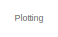
[diagram: root canvas - part 1/4, top right region]
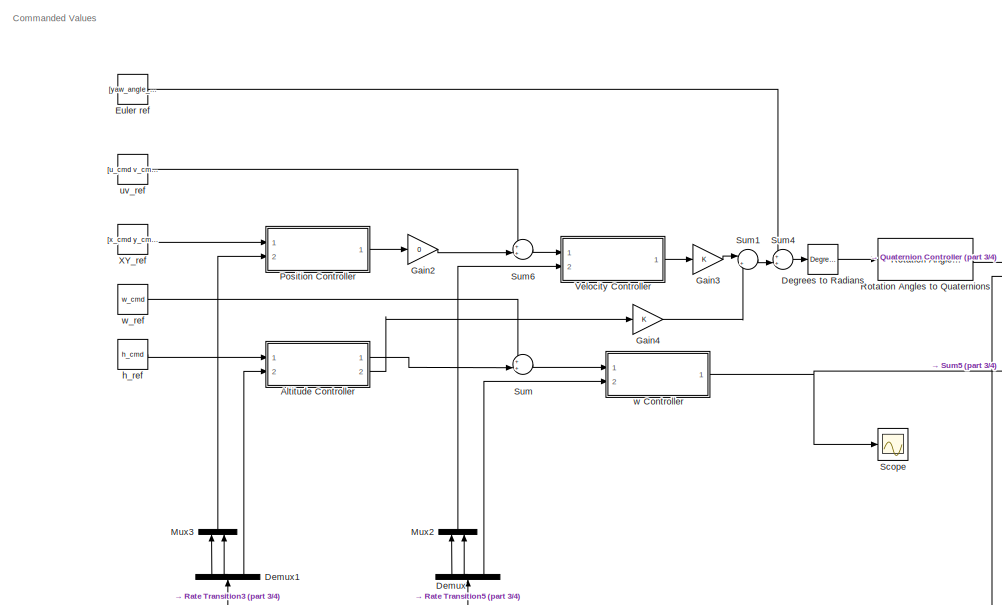
[diagram: root canvas - part 2/4, middle left region]
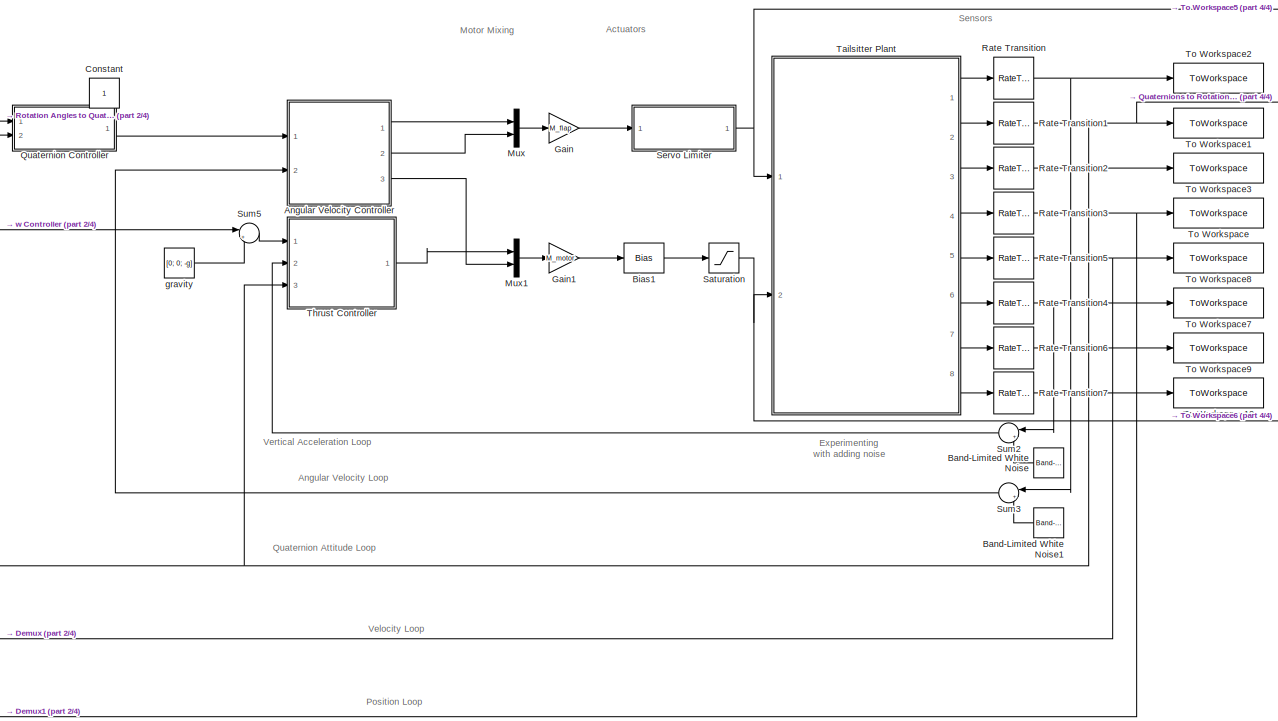
[diagram: root canvas - part 3/4, center side, full height]
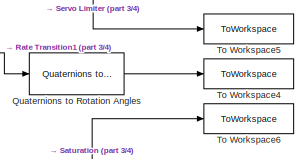
[diagram: root canvas - part 4/4, middle right region]
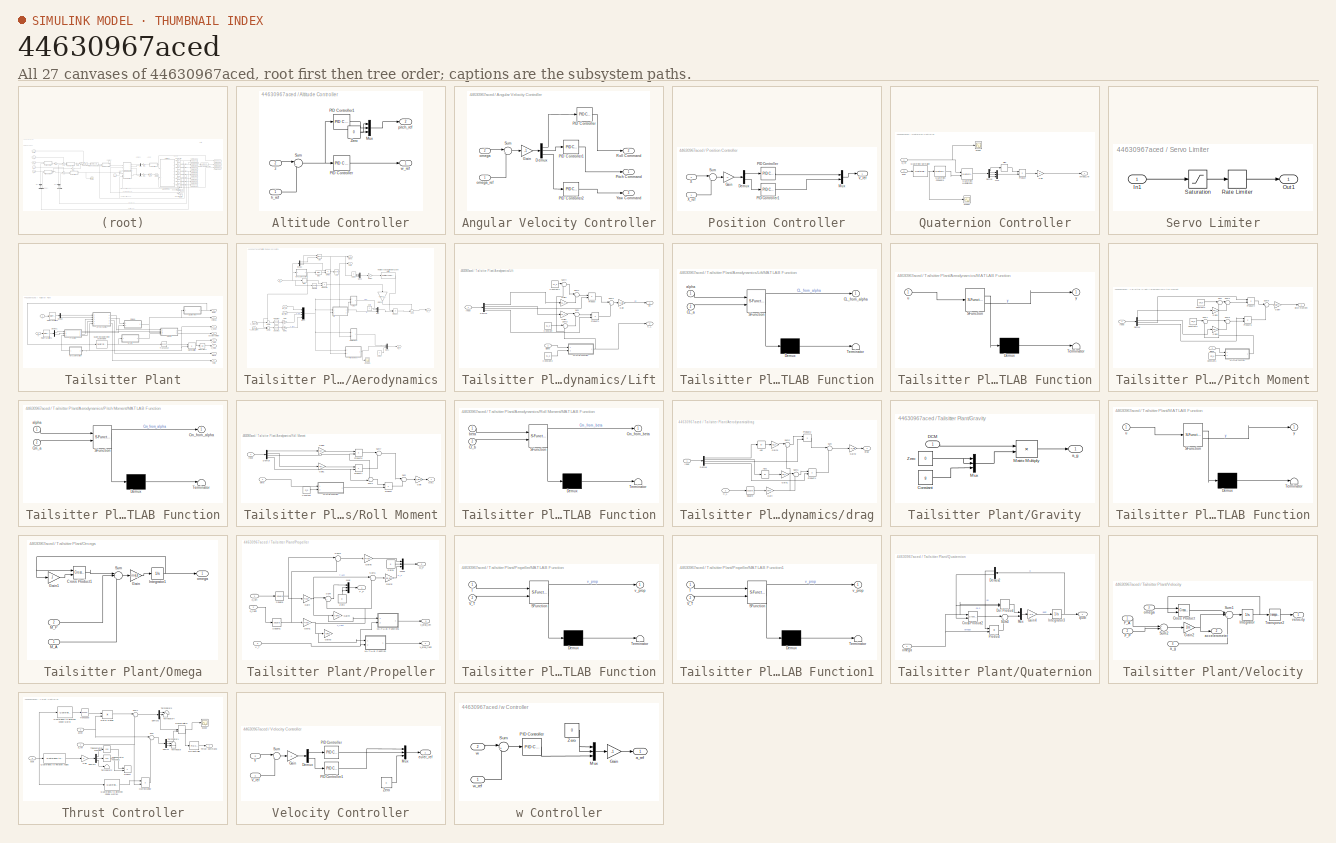
[diagram: thumbnail index - all 27 canvases of the model, root first then tree order]
MODEL slx_44630967aced
KIND model
CONFIG AbsTol = auto
CONFIG EnableMultiTasking = off
CONFIG FixedStep = auto
CONFIG MaxStep = auto
CONFIG MinStep = auto
CONFIG RelTol = 1e-3
CONFIG SampleTimeConstraint = Unconstrained
CONFIG SolverName = VariableStepAuto
CONFIG StartTime = 0.0
CONFIG StopTime = tf
BLOCK [SubSystem] Altitude Controller
  Ports = [2, 2]
  RequestExecContextInheritance = off
BLOCK [Mux] Altitude Controller/Mux
  DisplayOption = bar
  Inputs = 3
  Ports = [3, 1]
BLOCK [Reference] Altitude Controller/PID Controller  REF=pid_lib/PID Controller
  Ports = [1, 1]
  SourceBlock = pid_lib/PID Controller
  SourceProductBaseCode = SL
  SourceType = PID 1dof
BLOCK [Reference] Altitude Controller/PID Controller1  REF=pid_lib/PID Controller
  Ports = [1, 1]
  SourceBlock = pid_lib/PID Controller
  SourceProductBaseCode = SL
  SourceType = PID 1dof
BLOCK [Sum] Altitude Controller/Sum
  Inputs = |++
  Ports = [2, 1]
BLOCK [Constant] Altitude Controller/Zero
  OutDataTypeStr = Inherit: Inherit via back propagation
  Value = 0
BLOCK [Inport] Altitude Controller/h_ref
BLOCK [Outport] Altitude Controller/pitch_ref
  Port = 2
BLOCK [Outport] Altitude Controller/w_ref
BLOCK [Inport] Altitude Controller/z
  Port = 2
BLOCK [SubSystem] Angular Velocity Controller
  Ports = [2, 3]
  RequestExecContextInheritance = off
BLOCK [Demux] Angular Velocity Controller/Demux
  Outputs = 3
  Ports = [1, 3]
BLOCK [Gain] Angular Velocity Controller/Gain
  Gain = -1
BLOCK [Reference] Angular Velocity Controller/PID Controller  REF=pid_lib/PID Controller
  Ports = [1, 1]
  SourceBlock = pid_lib/PID Controller
  SourceProductBaseCode = SL
  SourceType = PID 1dof
BLOCK [Reference] Angular Velocity Controller/PID Controller1  REF=pid_lib/PID Controller
  Ports = [1, 1]
  SourceBlock = pid_lib/PID Controller
  SourceProductBaseCode = SL
  SourceType = PID 1dof
BLOCK [Reference] Angular Velocity Controller/PID Controller2  REF=pid_lib/PID Controller
  Ports = [1, 1]
  SourceBlock = pid_lib/PID Controller
  SourceProductBaseCode = SL
  SourceType = PID 1dof
BLOCK [Outport] Angular Velocity Controller/Pitch Command
BLOCK [Outport] Angular Velocity Controller/Roll Command
  Port = 2
BLOCK [Sum] Angular Velocity Controller/Sum
  Inputs = |+-
  Ports = [2, 1]
BLOCK [Outport] Angular Velocity Controller/Yaw Command
  Port = 3
BLOCK [Inport] Angular Velocity Controller/omega
  Port = 2
BLOCK [Inport] Angular Velocity Controller/omega_ref
BLOCK [Reference] Band-Limited White Noise  REF=simulink/Sources/Band-Limited
White Noise
  NameLocation = top
  Ports = [0, 1]
  SourceBlock = simulink/Sources/Band-Limited\nWhite Noise
  SourceProductBaseCode = SL
  SourceType = Band-Limited White Noise.
BLOCK [Reference] Band-Limited White Noise1  REF=simulink/Sources/Band-Limited
White Noise
  NameLocation = top
  Ports = [0, 1]
  SourceBlock = simulink/Sources/Band-Limited\nWhite Noise
  SourceProductBaseCode = SL
  SourceType = Band-Limited White Noise.
BLOCK [Bias] Bias1
  Bias = motor_eq
  SaturateOnIntegerOverflow = off
BLOCK [Constant] Constant
  IOType = siggen
BLOCK [Reference] Degrees to Radians  REF=simulink_extras/Transformations/Degrees to
Radians
  Ports = [1, 1]
  SourceBlock = simulink_extras/Transformations/Degrees to\nRadians
  SourceProductBaseCode = SL
  SourceType = DegreesToRadians
BLOCK [Demux] Demux
  NameLocation = right
  Outputs = 3
  Ports = [1, 3]
BLOCK [Demux] Demux1
  NameLocation = right
  Outputs = 3
  Ports = [1, 3]
BLOCK [Constant] Euler ref
  SampleTime = dt
  Value = [yaw_angle_cmd pitch_angle_cmd roll_angle_cmd]
BLOCK [Gain] Gain
  Gain = M_flap
  Multiplication = Matrix(K*u)
BLOCK [Gain] Gain1
  Gain = M_motor
  Multiplication = Matrix(K*u)
BLOCK [Gain] Gain2
  Gain = 0
BLOCK [Gain] Gain3
BLOCK [Gain] Gain4
BLOCK [Mux] Mux
  DisplayOption = bar
  Inputs = 2
  Ports = [2, 1]
BLOCK [Mux] Mux1
  DisplayOption = bar
  Inputs = 2
  Ports = [2, 1]
BLOCK [Mux] Mux2
  DisplayOption = bar
  Inputs = 2
  NameLocation = right
  Ports = [2, 1]
BLOCK [Mux] Mux3
  DisplayOption = bar
  Inputs = 2
  NameLocation = right
  Ports = [2, 1]
BLOCK [SubSystem] Position Controller
  Ports = [2, 1]
  RequestExecContextInheritance = off
BLOCK [Demux] Position Controller/Demux
  Outputs = 2
  Ports = [1, 2]
BLOCK [Gain] Position Controller/Gain
  Gain = -1
BLOCK [Mux] Position Controller/Mux
  DisplayOption = bar
  Inputs = 2
  Ports = [2, 1]
BLOCK [Reference] Position Controller/PID Controller  REF=pid_lib/PID Controller
  Ports = [1, 1]
  SourceBlock = pid_lib/PID Controller
  SourceProductBaseCode = SL
  SourceType = PID 1dof
BLOCK [Reference] Position Controller/PID Controller1  REF=pid_lib/PID Controller
  Ports = [1, 1]
  SourceBlock = pid_lib/PID Controller
  SourceProductBaseCode = SL
  SourceType = PID 1dof
BLOCK [Sum] Position Controller/Sum
  Inputs = |+-
  Ports = [2, 1]
BLOCK [Outport] Position Controller/V_ref
BLOCK [Inport] Position Controller/X
  Port = 2
BLOCK [Inport] Position Controller/X_ref
BLOCK [SubSystem] Quaternion Controller
  Ports = [2, 1]
  RequestExecContextInheritance = off
BLOCK [Demux] Quaternion Controller/Demux
  Ports = [1, 4]
BLOCK [Gain] Quaternion Controller/Gain
  Gain = 5
BLOCK [Mux] Quaternion Controller/Mux
  DisplayOption = bar
  Inputs = 3
  Ports = [3, 1]
BLOCK [Product] Quaternion Controller/Product
  Ports = [2, 1]
BLOCK [Reference] Quaternion Controller/Quaternion Conjugate  REF=aerolibutil/Quaternion
Conjugate
  Ports = [1, 1]
  SourceBlock = aerolibutil/Quaternion\nConjugate
  SourceProductBaseCode = AE
  SourceType = Quaternion Conjugate
BLOCK [Reference] Quaternion Controller/Quaternion Multiplication  REF=aerolibutil/Quaternion
Multiplication
  Ports = [2, 1]
  SourceBlock = aerolibutil/Quaternion\nMultiplication
  SourceProductBaseCode = AE
  SourceType = Quaternion Multiplication
BLOCK [Reference] Quaternion Controller/Quaternion Normalize  REF=sharedutil/Quaternion
Normalize
  Ports = [1, 1]
  SourceBlock = sharedutil/Quaternion\nNormalize
  SourceProductBaseCode = AE,PW,DR,MT,UV,VE
  SourceType = Quaternion Normalize
BLOCK [Scope] Quaternion Controller/Scope
  Floating = off
  NumInputPorts = 1
  Ports = [1]
  ScopeSpecificationString = Simulink.scopes.TimeScopeBlockCfg('CurrentConfiguration', extmgr.ConfigurationSet(extmgr.Configuration('Core','General UI',true),extmgr.Configuration('Core','Source UI',true),extmgr.Configuration('Sources','WiredSimulink',true,'DataLoggingVariableName','ScopeData1'),extmgr.Configuration('Visuals','Time Domain',true,'SerializedDisplays',{struct('MinYLimReal','-0.4473','MaxYLimReal','1.15848','YLabe...<+1394ch>
BLOCK [Scope] Quaternion Controller/Scope1
  Floating = off
  NumInputPorts = 1
  Ports = [1]
  ScopeSpecificationString = Simulink.scopes.TimeScopeBlockCfg('CurrentConfiguration', extmgr.ConfigurationSet(extmgr.Configuration('Core','General UI',true),extmgr.Configuration('Core','Source UI',true),extmgr.Configuration('Sources','WiredSimulink',true,'DataLoggingVariableName','ScopeData2'),extmgr.Configuration('Visuals','Time Domain',true,'SerializedDisplays',{struct('MinYLimReal','-0.6491','MaxYLimReal','1.18323','YLabe...<+1454ch>
BLOCK [Signum] Quaternion Controller/Sign
BLOCK [Outport] Quaternion Controller/omega_ref
BLOCK [Inport] Quaternion Controller/q_ref
BLOCK [Inport] Quaternion Controller/quat
  Port = 2
BLOCK [Reference] Quaternions to Rotation Angles  REF=sharedtransform/Quaternions to Rotation Angles
  AttributesFormatString = Rotation Order: %<rotationOrder>
  Ports = [1, 1]
  SourceBlock = sharedtransform/Quaternions to Rotation Angles
  SourceProductBaseCode = AE,PW,DR,MT,UV,VE
  SourceType = Quat2Ang
BLOCK [RateTransition] Rate Transition
  OutPortSampleTime = dt
BLOCK [RateTransition] Rate Transition1
  OutPortSampleTime = dt
BLOCK [RateTransition] Rate Transition2
  OutPortSampleTime = dt
BLOCK [RateTransition] Rate Transition3
  OutPortSampleTime = dt
BLOCK [RateTransition] Rate Transition4
  OutPortSampleTime = 0.005
BLOCK [RateTransition] Rate Transition5
  OutPortSampleTime = dt
BLOCK [RateTransition] Rate Transition6
  OutPortSampleTime = 0.005
BLOCK [RateTransition] Rate Transition7
  OutPortSampleTime = 0.005
BLOCK [Reference] Rotation Angles to Quaternions  REF=sharedtransform/Rotation Angles to Quaternions
  AttributesFormatString = Rotation Order: %<rotationOrder>
  Ports = [1, 1]
  SourceBlock = sharedtransform/Rotation Angles to Quaternions
  SourceProductBaseCode = AE,PW,DR,MT,UV,VE
  SourceType = Ang2Quat
BLOCK [Saturate] Saturation
  LowerLimit = 0
  UpperLimit = 500
BLOCK [Scope] Scope
  Floating = off
  NumInputPorts = 1
  Ports = [1]
  ScopeSpecificationString = Simulink.scopes.TimeScopeBlockCfg('CurrentConfiguration', extmgr.ConfigurationSet(extmgr.Configuration('Core','General UI',true),extmgr.Configuration('Core','Source UI',true),extmgr.Configuration('Sources','WiredSimulink',true,'DataLoggingVariableName','ScopeData1'),extmgr.Configuration('Visuals','Time Domain',true,'SerializedDisplays',{struct('MinYLimReal','-8.09136','MaxYLimReal','1.85065','YLab...<+1407ch>
BLOCK [SubSystem] Servo Limiter
  Ports = [1, 1]
  RequestExecContextInheritance = off
BLOCK [Inport] Servo Limiter/In1
BLOCK [Outport] Servo Limiter/Out1
BLOCK [RateLimiter] Servo Limiter/Rate Limiter
  FallingSlewLimit = -400
  RisingSlewLimit = 400
  SampleTimeMode = inherited
BLOCK [Saturate] Servo Limiter/Saturation
  LowerLimit = -20
  UpperLimit = 20
BLOCK [Sum] Sum
  Inputs = ++|
  Ports = [2, 1]
BLOCK [Sum] Sum1
  Inputs = |++
  Ports = [2, 1]
BLOCK [Sum] Sum2
  Inputs = |++
  NameLocation = top
  Ports = [2, 1]
BLOCK [Sum] Sum3
  Inputs = |++
  NameLocation = top
  Ports = [2, 1]
BLOCK [Sum] Sum4
  Inputs = ++|
  Ports = [2, 1]
BLOCK [Sum] Sum5
  Inputs = |++
  Ports = [2, 1]
BLOCK [Sum] Sum6
  Inputs = ++|
  Ports = [2, 1]
BLOCK [SubSystem] Tailsitter Plant
  NameLocation = top
  Ports = [2, 8]
  RequestExecContextInheritance = off
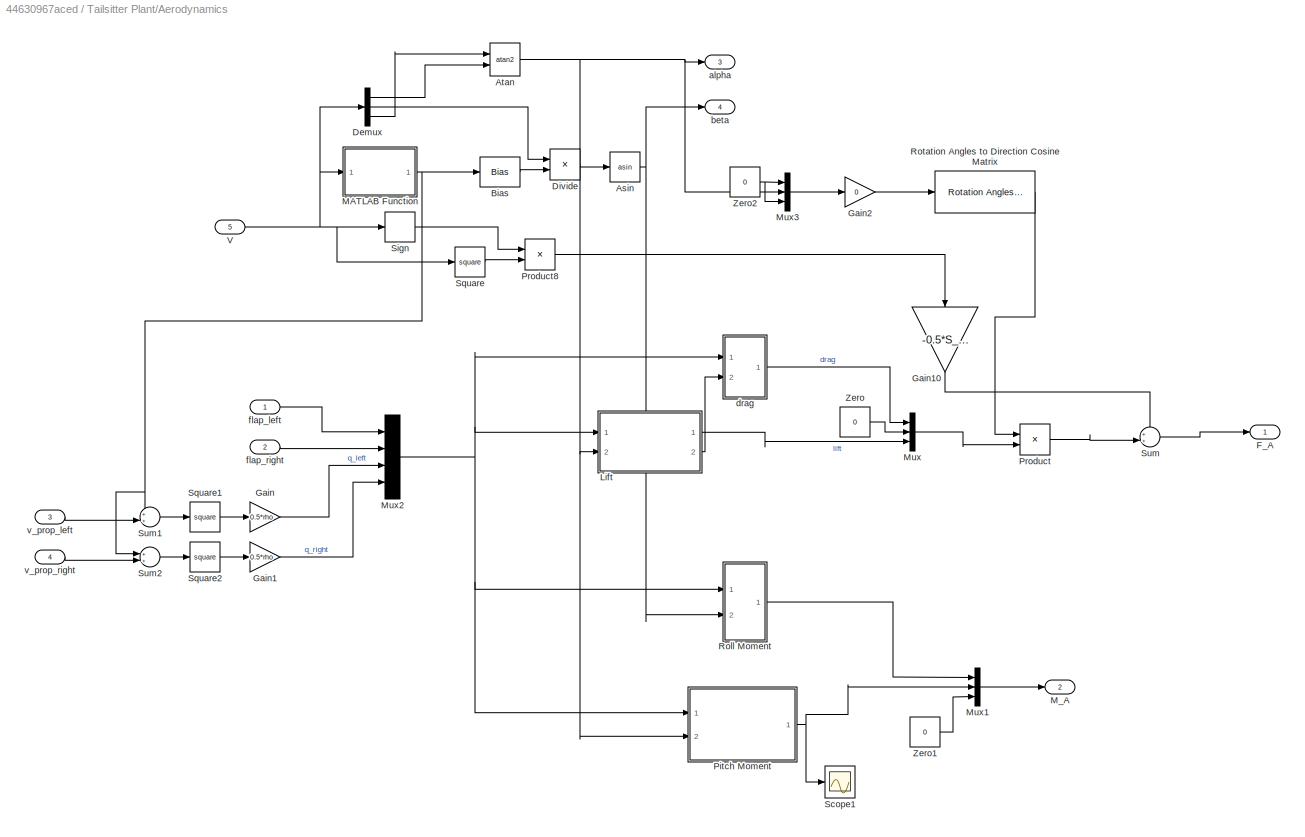
BLOCK [SubSystem] Tailsitter Plant/Aerodynamics
  Ports = [5, 4]
  RequestExecContextInheritance = off
BLOCK [Trigonometry] Tailsitter Plant/Aerodynamics/Asin
  Operator = asin
  Ports = [1, 1]
BLOCK [Trigonometry] Tailsitter Plant/Aerodynamics/Atan
  Operator = atan2
  Ports = [2, 1]
BLOCK [Bias] Tailsitter Plant/Aerodynamics/Bias
  Bias = eps
  SaturateOnIntegerOverflow = off
BLOCK [Demux] Tailsitter Plant/Aerodynamics/Demux
  Outputs = 3
  Ports = [1, 3]
BLOCK [Product] Tailsitter Plant/Aerodynamics/Divide
  Inputs = */
  Ports = [2, 1]
BLOCK [Outport] Tailsitter Plant/Aerodynamics/F_A
BLOCK [Gain] Tailsitter Plant/Aerodynamics/Gain
  Gain = 0.5*rho
BLOCK [Gain] Tailsitter Plant/Aerodynamics/Gain1
  Gain = 0.5*rho
BLOCK [Gain] Tailsitter Plant/Aerodynamics/Gain10
  Gain = -0.5*S_w*diag([0.1 0.1 1.3])
  Multiplication = Matrix(K*u) (u vector)
  NameLocation = left
BLOCK [Gain] Tailsitter Plant/Aerodynamics/Gain2
  Gain = 0
BLOCK [SubSystem] Tailsitter Plant/Aerodynamics/Lift
  Ports = [2, 2]
  RequestExecContextInheritance = off
BLOCK [Outport] Tailsitter Plant/Aerodynamics/Lift/C_L
  Port = 2
BLOCK [Constant] Tailsitter Plant/Aerodynamics/Lift/Constant
  Value = CL_0
BLOCK [Constant] Tailsitter Plant/Aerodynamics/Lift/Constant1
  Value = CL_0
BLOCK [Constant] Tailsitter Plant/Aerodynamics/Lift/Constant2
  Value = CL_a
BLOCK [Demux] Tailsitter Plant/Aerodynamics/Lift/Demux
  Ports = [1, 4]
BLOCK [Gain] Tailsitter Plant/Aerodynamics/Lift/Gain
  Gain = -S_w/2
BLOCK [Gain] Tailsitter Plant/Aerodynamics/Lift/Gain1
  Gain = CL_f
BLOCK [Gain] Tailsitter Plant/Aerodynamics/Lift/Gain4
  Gain = CL_f
BLOCK [Inport] Tailsitter Plant/Aerodynamics/Lift/Input
BLOCK [SubSystem] Tailsitter Plant/Aerodynamics/Lift/MATLAB Function
  ErrorFcn = Stateflow.Translate.translate
  PermitHierarchicalResolution = ExplicitOnly
  Ports = [2, 1]
  RequestExecContextInheritance = off
  SFBlockType = MATLAB Function
  TreatAsAtomicUnit = on
BLOCK [Demux] Tailsitter Plant/Aerodynamics/Lift/MATLAB Function/ Demux 
  Outputs = 1
  Ports = [1, 1]
BLOCK [S-Function] Tailsitter Plant/Aerodynamics/Lift/MATLAB Function/ SFunction 
  EnableBusSupport = on
  FunctionName = sf_sfun
  PortCounts = [2 2]
  Ports = [2, 2]
  SFcnIsStateOwnerBlock = off
  SFunctionDeploymentMode = off
  Tag = Stateflow S-Function 3
BLOCK [Terminator] Tailsitter Plant/Aerodynamics/Lift/MATLAB Function/ Terminator 
BLOCK [Inport] Tailsitter Plant/Aerodynamics/Lift/MATLAB Function/CL_a
  Port = 2
BLOCK [Outport] Tailsitter Plant/Aerodynamics/Lift/MATLAB Function/CL_from_alpha
BLOCK [Inport] Tailsitter Plant/Aerodynamics/Lift/MATLAB Function/alpha
BLOCK [Product] Tailsitter Plant/Aerodynamics/Lift/Product
  Ports = [2, 1]
BLOCK [Product] Tailsitter Plant/Aerodynamics/Lift/Product1
  Ports = [2, 1]
BLOCK [Sum] Tailsitter Plant/Aerodynamics/Lift/Sum
  Inputs = |++
  Ports = [2, 1]
BLOCK [Sum] Tailsitter Plant/Aerodynamics/Lift/Sum1
  Inputs = |++
  Ports = [2, 1]
BLOCK [Sum] Tailsitter Plant/Aerodynamics/Lift/Sum2
  Inputs = |++
  Ports = [2, 1]
BLOCK [Sum] Tailsitter Plant/Aerodynamics/Lift/Sum3
  Inputs = |++
  Ports = [2, 1]
BLOCK [Sum] Tailsitter Plant/Aerodynamics/Lift/Sum4
  Inputs = |++
  Ports = [2, 1]
BLOCK [Inport] Tailsitter Plant/Aerodynamics/Lift/alpha
  Port = 2
BLOCK [Outport] Tailsitter Plant/Aerodynamics/Lift/lift
BLOCK [SubSystem] Tailsitter Plant/Aerodynamics/MATLAB Function
  ErrorFcn = Stateflow.Translate.translate
  PermitHierarchicalResolution = ExplicitOnly
  Ports = [1, 1]
  RequestExecContextInheritance = off
  SFBlockType = MATLAB Function
  TreatAsAtomicUnit = on
BLOCK [Demux] Tailsitter Plant/Aerodynamics/MATLAB Function/ Demux 
  Outputs = 1
  Ports = [1, 1]
BLOCK [S-Function] Tailsitter Plant/Aerodynamics/MATLAB Function/ SFunction 
  EnableBusSupport = on
  FunctionName = sf_sfun
  PortCounts = [1 2]
  Ports = [1, 2]
  SFcnIsStateOwnerBlock = off
  SFunctionDeploymentMode = off
  Tag = Stateflow S-Function 5
BLOCK [Terminator] Tailsitter Plant/Aerodynamics/MATLAB Function/ Terminator 
BLOCK [Inport] Tailsitter Plant/Aerodynamics/MATLAB Function/u
BLOCK [Outport] Tailsitter Plant/Aerodynamics/MATLAB Function/y
BLOCK [Outport] Tailsitter Plant/Aerodynamics/M_A
  Port = 2
BLOCK [Mux] Tailsitter Plant/Aerodynamics/Mux
  DisplayOption = bar
  Inputs = 3
  Ports = [3, 1]
BLOCK [Mux] Tailsitter Plant/Aerodynamics/Mux1
  DisplayOption = bar
  Inputs = 3
  Ports = [3, 1]
BLOCK [Mux] Tailsitter Plant/Aerodynamics/Mux2
  DisplayOption = bar
  Ports = [4, 1]
BLOCK [Mux] Tailsitter Plant/Aerodynamics/Mux3
  DisplayOption = bar
  Inputs = 3
  Ports = [3, 1]
BLOCK [SubSystem] Tailsitter Plant/Aerodynamics/Pitch Moment
  Ports = [2, 1]
  RequestExecContextInheritance = off
BLOCK [Constant] Tailsitter Plant/Aerodynamics/Pitch Moment/Constant1
  Value = Cm_a
BLOCK [Constant] Tailsitter Plant/Aerodynamics/Pitch Moment/Constant2
  Value = Cm_0
BLOCK [Constant] Tailsitter Plant/Aerodynamics/Pitch Moment/Constant3
  Value = Cm_0
BLOCK [Demux] Tailsitter Plant/Aerodynamics/Pitch Moment/Demux
  Ports = [1, 4]
BLOCK [Gain] Tailsitter Plant/Aerodynamics/Pitch Moment/Gain5
  Gain = Cm_f
BLOCK [Gain] Tailsitter Plant/Aerodynamics/Pitch Moment/Gain6
  Gain = Cm_f
BLOCK [Gain] Tailsitter Plant/Aerodynamics/Pitch Moment/Gain7
  Gain = S_w/2*c_bar
BLOCK [Inport] Tailsitter Plant/Aerodynamics/Pitch Moment/Input
BLOCK [SubSystem] Tailsitter Plant/Aerodynamics/Pitch Moment/MATLAB Function
  ErrorFcn = Stateflow.Translate.translate
  PermitHierarchicalResolution = ExplicitOnly
  Ports = [2, 1]
  RequestExecContextInheritance = off
  SFBlockType = MATLAB Function
  TreatAsAtomicUnit = on
BLOCK [Demux] Tailsitter Plant/Aerodynamics/Pitch Moment/MATLAB Function/ Demux 
  Outputs = 1
  Ports = [1, 1]
BLOCK [S-Function] Tailsitter Plant/Aerodynamics/Pitch Moment/MATLAB Function/ SFunction 
  EnableBusSupport = on
  FunctionName = sf_sfun
  PortCounts = [2 2]
  Ports = [2, 2]
  SFcnIsStateOwnerBlock = off
  SFunctionDeploymentMode = off
  Tag = Stateflow S-Function 6
BLOCK [Terminator] Tailsitter Plant/Aerodynamics/Pitch Moment/MATLAB Function/ Terminator 
BLOCK [Inport] Tailsitter Plant/Aerodynamics/Pitch Moment/MATLAB Function/Cm_a
  Port = 2
BLOCK [Outport] Tailsitter Plant/Aerodynamics/Pitch Moment/MATLAB Function/Cm_from_alpha
BLOCK [Inport] Tailsitter Plant/Aerodynamics/Pitch Moment/MATLAB Function/alpha
BLOCK [Product] Tailsitter Plant/Aerodynamics/Pitch Moment/Product4
  Ports = [2, 1]
BLOCK [Product] Tailsitter Plant/Aerodynamics/Pitch Moment/Product5
  Ports = [2, 1]
BLOCK [Sum] Tailsitter Plant/Aerodynamics/Pitch Moment/Sum
  Inputs = |++
  Ports = [2, 1]
BLOCK [Sum] Tailsitter Plant/Aerodynamics/Pitch Moment/Sum1
  Inputs = |++
  Ports = [2, 1]
BLOCK [Sum] Tailsitter Plant/Aerodynamics/Pitch Moment/Sum4
  Inputs = |++
  Ports = [2, 1]
BLOCK [Sum] Tailsitter Plant/Aerodynamics/Pitch Moment/Sum5
  Inputs = |++
  Ports = [2, 1]
BLOCK [Sum] Tailsitter Plant/Aerodynamics/Pitch Moment/Sum6
  Inputs = |++
  Ports = [2, 1]
BLOCK [Inport] Tailsitter Plant/Aerodynamics/Pitch Moment/alpha
  Port = 2
BLOCK [Outport] Tailsitter Plant/Aerodynamics/Pitch Moment/pitch moment
BLOCK [Product] Tailsitter Plant/Aerodynamics/Product
  Multiplication = Matrix(*)
  Ports = [2, 1]
BLOCK [Product] Tailsitter Plant/Aerodynamics/Product8
  Ports = [2, 1]
BLOCK [SubSystem] Tailsitter Plant/Aerodynamics/Roll Moment
  Ports = [2, 1]
  RequestExecContextInheritance = off
BLOCK [Constant] Tailsitter Plant/Aerodynamics/Roll Moment/Constant
  Value = Cl_b
BLOCK [Demux] Tailsitter Plant/Aerodynamics/Roll Moment/Demux
  Ports = [1, 4]
BLOCK [Gain] Tailsitter Plant/Aerodynamics/Roll Moment/Gain
  Gain = S_w/2*b
BLOCK [Gain] Tailsitter Plant/Aerodynamics/Roll Moment/Gain1
  Gain = Cl_f
BLOCK [Gain] Tailsitter Plant/Aerodynamics/Roll Moment/Gain9
  Gain = Cl_f
BLOCK [Inport] Tailsitter Plant/Aerodynamics/Roll Moment/Input
BLOCK [SubSystem] Tailsitter Plant/Aerodynamics/Roll Moment/MATLAB Function
  ErrorFcn = Stateflow.Translate.translate
  PermitHierarchicalResolution = ExplicitOnly
  Ports = [2, 1]
  RequestExecContextInheritance = off
  SFBlockType = MATLAB Function
  TreatAsAtomicUnit = on
BLOCK [Demux] Tailsitter Plant/Aerodynamics/Roll Moment/MATLAB Function/ Demux 
  Outputs = 1
  Ports = [1, 1]
BLOCK [S-Function] Tailsitter Plant/Aerodynamics/Roll Moment/MATLAB Function/ SFunction 
  EnableBusSupport = on
  FunctionName = sf_sfun
  PortCounts = [2 2]
  Ports = [2, 2]
  SFcnIsStateOwnerBlock = off
  SFunctionDeploymentMode = off
  Tag = Stateflow S-Function 7
BLOCK [Terminator] Tailsitter Plant/Aerodynamics/Roll Moment/MATLAB Function/ Terminator 
BLOCK [Inport] Tailsitter Plant/Aerodynamics/Roll Moment/MATLAB Function/Cl_b
  Port = 2
BLOCK [Outport] Tailsitter Plant/Aerodynamics/Roll Moment/MATLAB Function/Cm_from_beta
BLOCK [Inport] Tailsitter Plant/Aerodynamics/Roll Moment/MATLAB Function/beta
BLOCK [Outport] Tailsitter Plant/Aerodynamics/Roll Moment/Out1
BLOCK [Product] Tailsitter Plant/Aerodynamics/Roll Moment/Product
  Ports = [2, 1]
BLOCK [Product] Tailsitter Plant/Aerodynamics/Roll Moment/Product6
  Ports = [2, 1]
BLOCK [Product] Tailsitter Plant/Aerodynamics/Roll Moment/Product7
  Ports = [2, 1]
BLOCK [Sum] Tailsitter Plant/Aerodynamics/Roll Moment/Sum
  Inputs = |++
  Ports = [2, 1]
BLOCK [Sum] Tailsitter Plant/Aerodynamics/Roll Moment/Sum1
  Inputs = ++|
  Ports = [2, 1]
BLOCK [Sum] Tailsitter Plant/Aerodynamics/Roll Moment/Sum7
  Inputs = |+-
  Ports = [2, 1]
BLOCK [Inport] Tailsitter Plant/Aerodynamics/Roll Moment/beta
  Port = 2
BLOCK [Reference] Tailsitter Plant/Aerodynamics/Rotation Angles to Direction Cosine Matrix  REF=sharedtransform/Rotation Angles to
Direction Cosine Matrix
  AttributesFormatString = Rotation Order: %<rotationOrder>
  Ports = [1, 1]
  SourceBlock = sharedtransform/Rotation Angles to\nDirection Cosine Matrix
  SourceProductBaseCode = AE,PW,DR,MT,UV,VE
  SourceType = Ang2DCM
BLOCK [Scope] Tailsitter Plant/Aerodynamics/Scope1
  Floating = off
  NumInputPorts = 1
  Ports = [1]
  ScopeSpecificationString = Simulink.scopes.TimeScopeBlockCfg('CurrentConfiguration', extmgr.ConfigurationSet(extmgr.Configuration('Core','General UI',true),extmgr.Configuration('Core','Source UI',true),extmgr.Configuration('Sources','WiredSimulink',true,'DataLoggingVariableName','ScopeData4'),extmgr.Configuration('Visuals','Time Domain',true,'SerializedDisplays',{struct('MinYLimReal','-0.01426','MaxYLimReal','0.02364','YLab...<+1371ch>
BLOCK [Signum] Tailsitter Plant/Aerodynamics/Sign
BLOCK [Math] Tailsitter Plant/Aerodynamics/Square
  Operator = square
  Ports = [1, 1]
BLOCK [Math] Tailsitter Plant/Aerodynamics/Square1
  Operator = square
  Ports = [1, 1]
BLOCK [Math] Tailsitter Plant/Aerodynamics/Square2
  Operator = square
  Ports = [1, 1]
BLOCK [Sum] Tailsitter Plant/Aerodynamics/Sum
  Inputs = ++|
  Ports = [2, 1]
BLOCK [Sum] Tailsitter Plant/Aerodynamics/Sum1
  Inputs = ++|
  Ports = [2, 1]
BLOCK [Sum] Tailsitter Plant/Aerodynamics/Sum2
  Inputs = ++|
  Ports = [2, 1]
BLOCK [Inport] Tailsitter Plant/Aerodynamics/V
  Port = 5
BLOCK [Constant] Tailsitter Plant/Aerodynamics/Zero
  OutDataTypeStr = Inherit: Inherit via back propagation
  Value = 0
BLOCK [Constant] Tailsitter Plant/Aerodynamics/Zero1
  OutDataTypeStr = Inherit: Inherit via back propagation
  Value = 0
BLOCK [Constant] Tailsitter Plant/Aerodynamics/Zero2
  OutDataTypeStr = Inherit: Inherit via back propagation
  Value = 0
BLOCK [Outport] Tailsitter Plant/Aerodynamics/alpha
  Port = 3
BLOCK [Outport] Tailsitter Plant/Aerodynamics/beta
  Port = 4
BLOCK [SubSystem] Tailsitter Plant/Aerodynamics/drag
  Ports = [2, 1]
  RequestExecContextInheritance = off
BLOCK [Abs] Tailsitter Plant/Aerodynamics/drag/Abs
  SaturateOnIntegerOverflow = off
BLOCK [Abs] Tailsitter Plant/Aerodynamics/drag/Abs1
  SaturateOnIntegerOverflow = off
BLOCK [Inport] Tailsitter Plant/Aerodynamics/drag/C_L
  Port = 2
BLOCK [Demux] Tailsitter Plant/Aerodynamics/drag/Demux
  Ports = [1, 4]
BLOCK [Gain] Tailsitter Plant/Aerodynamics/drag/Gain
  Gain = 1/(pi*eff*AR)
BLOCK [Gain] Tailsitter Plant/Aerodynamics/drag/Gain1
  Gain = CD_f
BLOCK [Gain] Tailsitter Plant/Aerodynamics/drag/Gain2
  Gain = -S_w/2
BLOCK [Gain] Tailsitter Plant/Aerodynamics/drag/Gain3
  Gain = CD_f
BLOCK [Inport] Tailsitter Plant/Aerodynamics/drag/Input
BLOCK [Product] Tailsitter Plant/Aerodynamics/drag/Product1
  Ports = [2, 1]
BLOCK [Product] Tailsitter Plant/Aerodynamics/drag/Product2
  Ports = [2, 1]
BLOCK [Math] Tailsitter Plant/Aerodynamics/drag/Square
  Operator = square
  Ports = [1, 1]
BLOCK [Sum] Tailsitter Plant/Aerodynamics/drag/Sum
  Inputs = |++
  Ports = [2, 1]
BLOCK [Sum] Tailsitter Plant/Aerodynamics/drag/Sum1
  Inputs = |++
  Ports = [2, 1]
BLOCK [Sum] Tailsitter Plant/Aerodynamics/drag/Sum2
  Inputs = |++
  Ports = [2, 1]
BLOCK [Outport] Tailsitter Plant/Aerodynamics/drag/drag
BLOCK [Inport] Tailsitter Plant/Aerodynamics/flap_left
BLOCK [Inport] Tailsitter Plant/Aerodynamics/flap_right
  Port = 2
BLOCK [Inport] Tailsitter Plant/Aerodynamics/v_prop_left
  Port = 3
BLOCK [Inport] Tailsitter Plant/Aerodynamics/v_prop_right
  Port = 4
BLOCK [Demux] Tailsitter Plant/Demux
  Outputs = 2
  Ports = [1, 2]
BLOCK [Demux] Tailsitter Plant/Demux1
  Outputs = 2
  Ports = [1, 2]
BLOCK [SubSystem] Tailsitter Plant/Gravity
  Ports = [1, 1]
  RequestExecContextInheritance = off
BLOCK [Constant] Tailsitter Plant/Gravity/Constant
  Value = g
BLOCK [Inport] Tailsitter Plant/Gravity/DCM
BLOCK [Product] Tailsitter Plant/Gravity/Matrix Multiply
  Multiplication = Matrix(*)
  Ports = [2, 1]
BLOCK [Mux] Tailsitter Plant/Gravity/Mux
  DisplayOption = bar
  Inputs = 3
  Ports = [3, 1]
BLOCK [Constant] Tailsitter Plant/Gravity/Zero
  OutDataTypeStr = Inherit: Inherit via back propagation
  Value = 0
BLOCK [Outport] Tailsitter Plant/Gravity/a_g
BLOCK [Integrator] Tailsitter Plant/Integrator2
  InitialCondition = [0;0;z0]
  Ports = [1, 1]
BLOCK [SubSystem] Tailsitter Plant/MATLAB Function
  ErrorFcn = Stateflow.Translate.translate
  NameLocation = top
  PermitHierarchicalResolution = ExplicitOnly
  Ports = [1, 1]
  RequestExecContextInheritance = off
  SFBlockType = MATLAB Function
  TreatAsAtomicUnit = on
BLOCK [Demux] Tailsitter Plant/MATLAB Function/ Demux 
  Outputs = 1
  Ports = [1, 1]
BLOCK [S-Function] Tailsitter Plant/MATLAB Function/ SFunction 
  EnableBusSupport = on
  FunctionName = sf_sfun
  PortCounts = [1 2]
  Ports = [1, 2]
  SFcnIsStateOwnerBlock = off
  SFunctionDeploymentMode = off
  Tag = Stateflow S-Function 4
BLOCK [Terminator] Tailsitter Plant/MATLAB Function/ Terminator 
BLOCK [Inport] Tailsitter Plant/MATLAB Function/u
BLOCK [Outport] Tailsitter Plant/MATLAB Function/y
BLOCK [Product] Tailsitter Plant/Matrix Multiply
  Multiplication = Matrix(*)
  Ports = [2, 1]
BLOCK [SubSystem] Tailsitter Plant/Omega
  NameLocation = top
  Ports = [2, 1]
  RequestExecContextInheritance = off
BLOCK [Reference] Tailsitter Plant/Omega/Cross Product1  REF=vrlib/Utilities/Cross Product
  Ports = [2, 1]
  SourceBlock = vrlib/Utilities/Cross Product
  SourceProductBaseCode = SL
  SourceType = Cross Product
BLOCK [Gain] Tailsitter Plant/Omega/Gain
  Gain = inv(J)
  Multiplication = Matrix(K*u) (u vector)
BLOCK [Gain] Tailsitter Plant/Omega/Gain1
  Gain = J
  Multiplication = Matrix(K*u) (u vector)
BLOCK [Integrator] Tailsitter Plant/Omega/Integrator1
  Ports = [1, 1]
BLOCK [Inport] Tailsitter Plant/Omega/M_A
BLOCK [Inport] Tailsitter Plant/Omega/M_P
  Port = 2
BLOCK [Sum] Tailsitter Plant/Omega/Sum
  Inputs = |-++
  Ports = [3, 1]
BLOCK [Outport] Tailsitter Plant/Omega/omega
BLOCK [SubSystem] Tailsitter Plant/Propeller
  Ports = [3, 4]
  RequestExecContextInheritance = off
BLOCK [Outport] Tailsitter Plant/Propeller/F_P
BLOCK [Gain] Tailsitter Plant/Propeller/Gain
  Gain = CT*rho*D^4
BLOCK [Gain] Tailsitter Plant/Propeller/Gain1
  Gain = CT*rho*D^4
BLOCK [Gain] Tailsitter Plant/Propeller/Gain2
  Gain = prop_arm
BLOCK [Gain] Tailsitter Plant/Propeller/Gain3
  Commented = on
  Gain = 4/(pi*D^2)
BLOCK [Gain] Tailsitter Plant/Propeller/Gain4
  Commented = on
  Gain = 4/(pi*D^2)
BLOCK [Gain] Tailsitter Plant/Propeller/Gain5
  Gain = CP*rho*D^5/(2*pi)
BLOCK [SubSystem] Tailsitter Plant/Propeller/MATLAB Function
  ErrorFcn = Stateflow.Translate.translate
  PermitHierarchicalResolution = ExplicitOnly
  Ports = [2, 1]
  RequestExecContextInheritance = off
  SFBlockType = MATLAB Function
  TreatAsAtomicUnit = on
BLOCK [Demux] Tailsitter Plant/Propeller/MATLAB Function/ Demux 
  Outputs = 1
  Ports = [1, 1]
BLOCK [S-Function] Tailsitter Plant/Propeller/MATLAB Function/ SFunction 
  EnableBusSupport = on
  FunctionName = sf_sfun
  PortCounts = [2 2]
  Ports = [2, 2]
  SFcnIsStateOwnerBlock = off
  SFunctionDeploymentMode = off
  Tag = Stateflow S-Function 2
BLOCK [Terminator] Tailsitter Plant/Propeller/MATLAB Function/ Terminator 
BLOCK [Inport] Tailsitter Plant/Propeller/MATLAB Function/T
BLOCK [Inport] Tailsitter Plant/Propeller/MATLAB Function/V_T
  Port = 2
BLOCK [Outport] Tailsitter Plant/Propeller/MATLAB Function/v_prop
BLOCK [SubSystem] Tailsitter Plant/Propeller/MATLAB Function1
  ErrorFcn = Stateflow.Translate.translate
  PermitHierarchicalResolution = ExplicitOnly
  Ports = [2, 1]
  RequestExecContextInheritance = off
  SFBlockType = MATLAB Function
  TreatAsAtomicUnit = on
BLOCK [Demux] Tailsitter Plant/Propeller/MATLAB Function1/ Demux 
  Outputs = 1
  Ports = [1, 1]
BLOCK [S-Function] Tailsitter Plant/Propeller/MATLAB Function1/ SFunction 
  EnableBusSupport = on
  FunctionName = sf_sfun
  PortCounts = [2 2]
  Ports = [2, 2]
  SFcnIsStateOwnerBlock = off
  SFunctionDeploymentMode = off
  Tag = Stateflow S-Function 1
BLOCK [Terminator] Tailsitter Plant/Propeller/MATLAB Function1/ Terminator 
BLOCK [Inport] Tailsitter Plant/Propeller/MATLAB Function1/T
BLOCK [Inport] Tailsitter Plant/Propeller/MATLAB Function1/V_T
  Port = 2
BLOCK [Outport] Tailsitter Plant/Propeller/MATLAB Function1/v_prop
BLOCK [Outport] Tailsitter Plant/Propeller/M_P
  Port = 2
BLOCK [Mux] Tailsitter Plant/Propeller/Mux
  DisplayOption = bar
  Inputs = 3
  Ports = [3, 1]
BLOCK [Mux] Tailsitter Plant/Propeller/Mux1
  DisplayOption = bar
  Inputs = 3
  Ports = [3, 1]
BLOCK [Math] Tailsitter Plant/Propeller/Square
  Operator = square
  Ports = [1, 1]
BLOCK [Math] Tailsitter Plant/Propeller/Square1
  Operator = square
  Ports = [1, 1]
BLOCK [Sum] Tailsitter Plant/Propeller/Sum
  Inputs = |++
  Ports = [2, 1]
BLOCK [Sum] Tailsitter Plant/Propeller/Sum1
  Inputs = |+-
  Ports = [2, 1]
BLOCK [Sum] Tailsitter Plant/Propeller/Sum2
  Inputs = |-+
  Ports = [2, 1]
BLOCK [Inport] Tailsitter Plant/Propeller/V_T
  Port = 3
BLOCK [Constant] Tailsitter Plant/Propeller/Zero
  NameLocation = right
  OutDataTypeStr = Inherit: Inherit via back propagation
  Value = 0
BLOCK [Constant] Tailsitter Plant/Propeller/Zero1
  OutDataTypeStr = Inherit: Inherit via back propagation
  Value = 0
BLOCK [Inport] Tailsitter Plant/Propeller/n_left
BLOCK [Inport] Tailsitter Plant/Propeller/n_right
  Port = 2
BLOCK [Outport] Tailsitter Plant/Propeller/v_prop_left
  Port = 3
BLOCK [Outport] Tailsitter Plant/Propeller/v_prop_right
  Port = 4
BLOCK [SubSystem] Tailsitter Plant/Quaternion
  Ports = [1, 1]
  RequestExecContextInheritance = off
BLOCK [Reference] Tailsitter Plant/Quaternion/Cross Product2  REF=vrlib/Utilities/Cross Product
  Ports = [2, 1]
  SourceBlock = vrlib/Utilities/Cross Product
  SourceProductBaseCode = SL
  SourceType = Cross Product
BLOCK [Demux] Tailsitter Plant/Quaternion/Demux2
  NameLocation = top
  Outputs = 2
  Ports = [1, 2]
BLOCK [DotProduct] Tailsitter Plant/Quaternion/Dot Product
  OutDataTypeStr = Inherit: Inherit via internal rule
BLOCK [Gain] Tailsitter Plant/Quaternion/Gain4
  Gain = -0.5
BLOCK [Integrator] Tailsitter Plant/Quaternion/Integrator3
  InitialCondition = q_initial
  Ports = [1, 1]
BLOCK [Mux] Tailsitter Plant/Quaternion/Mux
  DisplayOption = bar
  Inputs = 2
  Ports = [2, 1]
BLOCK [Product] Tailsitter Plant/Quaternion/Product
  Ports = [2, 1]
BLOCK [Sum] Tailsitter Plant/Quaternion/Sum3
  Inputs = |+-
  Ports = [2, 1]
BLOCK [Inport] Tailsitter Plant/Quaternion/omega
BLOCK [Outport] Tailsitter Plant/Quaternion/quat
BLOCK [Reference] Tailsitter Plant/Quaternions to Direction Cosine Matrix  REF=sharedtransform/Quaternions to 
Direction Cosine Matrix
  Ports = [1, 1]
  SourceBlock = sharedtransform/Quaternions to \nDirection Cosine Matrix
  SourceProductBaseCode = AE,PW,DR,MT,UV,VE
  SourceType = Quaternion2DCM
BLOCK [RateTransition] Tailsitter Plant/Rate Transition1
  OutPortSampleTimeOpt = Inherit
BLOCK [RateTransition] Tailsitter Plant/Rate Transition2
  OutPortSampleTimeOpt = Inherit
BLOCK [Math] Tailsitter Plant/Transpose
  Operator = transpose
  Ports = [1, 1]
BLOCK [Outport] Tailsitter Plant/V_NED
  Port = 5
BLOCK [Outport] Tailsitter Plant/V_body
  Port = 3
BLOCK [SubSystem] Tailsitter Plant/Velocity
  Ports = [4, 2]
  RequestExecContextInheritance = off
BLOCK [Reference] Tailsitter Plant/Velocity/Cross Product  REF=vrlib/Utilities/Cross Product
  Ports = [2, 1]
  SourceBlock = vrlib/Utilities/Cross Product
  SourceProductBaseCode = SL
  SourceType = Cross Product
BLOCK [Inport] Tailsitter Plant/Velocity/F_A
BLOCK [Inport] Tailsitter Plant/Velocity/F_P
  Port = 2
BLOCK [Gain] Tailsitter Plant/Velocity/Gain2
  Gain = 1/m
BLOCK [Integrator] Tailsitter Plant/Velocity/Integrator
  InitialCondition = V_0
  Ports = [1, 1]
BLOCK [Sum] Tailsitter Plant/Velocity/Sum1
  Inputs = |-++
  Ports = [3, 1]
BLOCK [Sum] Tailsitter Plant/Velocity/Sum2
  Inputs = ++|
  Ports = [2, 1]
BLOCK [Math] Tailsitter Plant/Velocity/Transpose2
  Operator = transpose
  Ports = [1, 1]
BLOCK [Inport] Tailsitter Plant/Velocity/a_g
  Port = 4
BLOCK [Outport] Tailsitter Plant/Velocity/accelerometer
  Port = 2
BLOCK [Inport] Tailsitter Plant/Velocity/omega
  Port = 3
BLOCK [Outport] Tailsitter Plant/Velocity/velocity
BLOCK [Outport] Tailsitter Plant/X_NED
  Port = 4
BLOCK [Outport] Tailsitter Plant/accelerometer
  Port = 6
BLOCK [Outport] Tailsitter Plant/alpha
  Port = 7
BLOCK [Outport] Tailsitter Plant/beta
  Port = 8
BLOCK [Inport] Tailsitter Plant/f
BLOCK [Inport] Tailsitter Plant/n
  Port = 2
BLOCK [Outport] Tailsitter Plant/omega
BLOCK [Outport] Tailsitter Plant/quat
  Port = 2
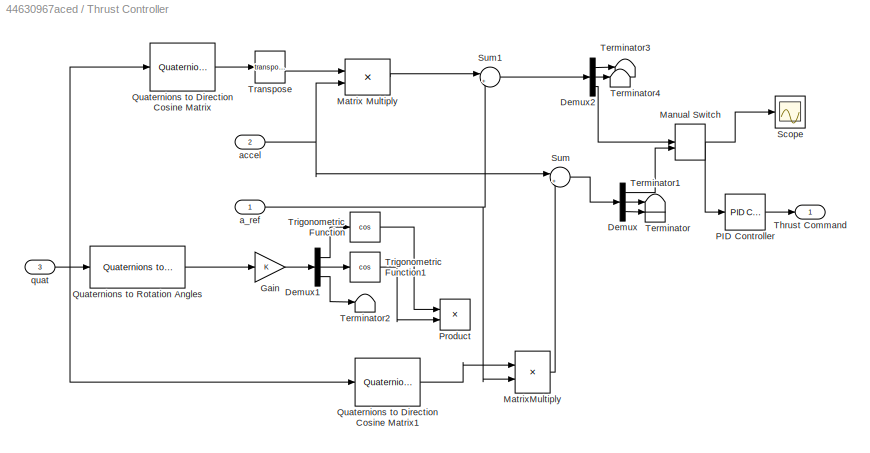
BLOCK [SubSystem] Thrust Controller
  Ports = [3, 1]
  RequestExecContextInheritance = off
BLOCK [Demux] Thrust Controller/Demux
  Outputs = 3
  Ports = [1, 3]
BLOCK [Demux] Thrust Controller/Demux1
  Commented = on
  Outputs = 3
  Ports = [1, 3]
BLOCK [Demux] Thrust Controller/Demux2
  Outputs = 3
  Ports = [1, 3]
BLOCK [Gain] Thrust Controller/Gain
  Commented = on
BLOCK [ManualSwitch] Thrust Controller/Manual Switch
  CurrentSetting = 0
BLOCK [Product] Thrust Controller/Matrix Multiply
  Multiplication = Matrix(*)
  Ports = [2, 1]
BLOCK [Product] Thrust Controller/MatrixMultiply
  Multiplication = Matrix(*)
  Ports = [2, 1]
BLOCK [Reference] Thrust Controller/PID Controller  REF=pid_lib/PID Controller
  Ports = [1, 1]
  SourceBlock = pid_lib/PID Controller
  SourceProductBaseCode = SL
  SourceType = PID 1dof
BLOCK [Product] Thrust Controller/Product
  Commented = on
  Ports = [2, 1]
BLOCK [Reference] Thrust Controller/Quaternions to Direction Cosine Matrix  REF=sharedtransform/Quaternions to 
Direction Cosine Matrix
  Ports = [1, 1]
  SourceBlock = sharedtransform/Quaternions to \nDirection Cosine Matrix
  SourceProductBaseCode = AE,PW,DR,MT,UV,VE
  SourceType = Quaternion2DCM
BLOCK [Reference] Thrust Controller/Quaternions to Direction Cosine Matrix1  REF=sharedtransform/Quaternions to 
Direction Cosine Matrix
  Ports = [1, 1]
  SourceBlock = sharedtransform/Quaternions to \nDirection Cosine Matrix
  SourceProductBaseCode = AE,PW,DR,MT,UV,VE
  SourceType = Quaternion2DCM
BLOCK [Reference] Thrust Controller/Quaternions to Rotation Angles  REF=sharedtransform/Quaternions to Rotation Angles
  AttributesFormatString = Rotation Order: %<rotationOrder>
  Commented = on
  Ports = [1, 1]
  SourceBlock = sharedtransform/Quaternions to Rotation Angles
  SourceProductBaseCode = AE,PW,DR,MT,UV,VE
  SourceType = Quat2Ang
BLOCK [Scope] Thrust Controller/Scope
  Floating = off
  NumInputPorts = 1
  Ports = [1]
  ScopeSpecificationString = Simulink.scopes.TimeScopeBlockCfg('CurrentConfiguration', extmgr.ConfigurationSet(extmgr.Configuration('Core','General UI',true),extmgr.Configuration('Core','Source UI',true),extmgr.Configuration('Sources','WiredSimulink',true,'DataLoggingVariableName','ScopeData3'),extmgr.Configuration('Visuals','Time Domain',true,'SerializedDisplays',{struct('MinYLimReal','-11.24127','MaxYLimReal','8.11336','YLa...<+1441ch>
BLOCK [Sum] Thrust Controller/Sum
  Inputs = |+-
  Ports = [2, 1]
BLOCK [Sum] Thrust Controller/Sum1
  Inputs = |+-
  Ports = [2, 1]
BLOCK [Terminator] Thrust Controller/Terminator
BLOCK [Terminator] Thrust Controller/Terminator1
BLOCK [Terminator] Thrust Controller/Terminator2
  Commented = on
BLOCK [Terminator] Thrust Controller/Terminator3
BLOCK [Terminator] Thrust Controller/Terminator4
BLOCK [Outport] Thrust Controller/Thrust Command
BLOCK [Math] Thrust Controller/Transpose
  Operator = transpose
  Ports = [1, 1]
BLOCK [Trigonometry] Thrust Controller/Trigonometric Function
  Commented = on
  Operator = cos
  Ports = [1, 1]
BLOCK [Trigonometry] Thrust Controller/Trigonometric Function1
  Commented = on
  Operator = cos
  Ports = [1, 1]
BLOCK [Inport] Thrust Controller/a_ref
BLOCK [Inport] Thrust Controller/accel
  Port = 2
BLOCK [Inport] Thrust Controller/quat
  Port = 3
BLOCK [ToWorkspace] To Workspace
  FixptAsFi = on
  MaxDataPoints = inf
  Ports = [1]
  SampleTime = -1
  VariableName = pos
BLOCK [ToWorkspace] To Workspace1
  FixptAsFi = on
  MaxDataPoints = inf
  Ports = [1]
  SampleTime = -1
  VariableName = quat
BLOCK [ToWorkspace] To Workspace10
  FixptAsFi = on
  MaxDataPoints = inf
  Ports = [1]
  SampleTime = -1
  VariableName = beta
BLOCK [ToWorkspace] To Workspace2
  FixptAsFi = on
  MaxDataPoints = inf
  Ports = [1]
  SampleTime = -1
  VariableName = omega
BLOCK [ToWorkspace] To Workspace3
  FixptAsFi = on
  MaxDataPoints = inf
  Ports = [1]
  SampleTime = -1
  VariableName = V
BLOCK [ToWorkspace] To Workspace4
  FixptAsFi = on
  MaxDataPoints = inf
  Ports = [1]
  SampleTime = -1
  VariableName = euler
BLOCK [ToWorkspace] To Workspace5
  FixptAsFi = on
  MaxDataPoints = inf
  Ports = [1]
  SampleTime = -1
  VariableName = flaps
BLOCK [ToWorkspace] To Workspace6
  FixptAsFi = on
  MaxDataPoints = inf
  Ports = [1]
  SampleTime = -1
  VariableName = motors
BLOCK [ToWorkspace] To Workspace7
  FixptAsFi = on
  MaxDataPoints = inf
  Ports = [1]
  SampleTime = -1
  VariableName = accel
BLOCK [ToWorkspace] To Workspace8
  FixptAsFi = on
  MaxDataPoints = inf
  Ports = [1]
  SampleTime = -1
  VariableName = V_NED
BLOCK [ToWorkspace] To Workspace9
  FixptAsFi = on
  MaxDataPoints = inf
  Ports = [1]
  SampleTime = -1
  VariableName = alpha
BLOCK [SubSystem] Velocity Controller
  Ports = [2, 1]
  RequestExecContextInheritance = off
BLOCK [Demux] Velocity Controller/Demux
  Outputs = 2
  Ports = [1, 2]
BLOCK [Gain] Velocity Controller/Gain
  Gain = -1
BLOCK [Mux] Velocity Controller/Mux
  DisplayOption = bar
  Inputs = 3
  Ports = [3, 1]
BLOCK [Reference] Velocity Controller/PID Controller  REF=pid_lib/PID Controller
  Ports = [1, 1]
  SourceBlock = pid_lib/PID Controller
  SourceProductBaseCode = SL
  SourceType = PID 1dof
BLOCK [Reference] Velocity Controller/PID Controller1  REF=pid_lib/PID Controller
  Ports = [1, 1]
  SourceBlock = pid_lib/PID Controller
  SourceProductBaseCode = SL
  SourceType = PID 1dof
BLOCK [Sum] Velocity Controller/Sum
  Inputs = |+-
  Ports = [2, 1]
BLOCK [Inport] Velocity Controller/V
  Port = 2
BLOCK [Inport] Velocity Controller/V_ref
BLOCK [Constant] Velocity Controller/Zero
  OutDataTypeStr = Inherit: Inherit via back propagation
  Value = 0
BLOCK [Outport] Velocity Controller/euler_ref
BLOCK [Constant] XY_ref
  Value = [x_cmd y_cmd]
BLOCK [Constant] gravity
  SampleTime = Inf
  Value = [0; 0; -g]
BLOCK [Constant] h_ref
  Value = h_cmd
BLOCK [Constant] uv_ref
  Value = [u_cmd v_cmd]
BLOCK [SubSystem] w Controller
  Ports = [2, 1]
  RequestExecContextInheritance = off
BLOCK [Gain] w Controller/Gain
  Gain = -1
BLOCK [Mux] w Controller/Mux
  DisplayOption = bar
  Inputs = 3
  Ports = [3, 1]
BLOCK [Reference] w Controller/PID Controller  REF=pid_lib/PID Controller
  Ports = [1, 1]
  SourceBlock = pid_lib/PID Controller
  SourceProductBaseCode = SL
  SourceType = PID 1dof
BLOCK [Sum] w Controller/Sum
  Inputs = |+-
  Ports = [2, 1]
BLOCK [Constant] w Controller/Zero
  OutDataTypeStr = Inherit: Inherit via back propagation
  Value = 0
BLOCK [Outport] w Controller/a_ref
BLOCK [Inport] w Controller/w
  Port = 2
BLOCK [Inport] w Controller/w_ref
BLOCK [Constant] w_ref
  Value = w_cmd
ANNOTATION (root): Experimenting with adding noise
ANNOTATION (root): Commanded Values
ANNOTATION (root): Motor Mixing
ANNOTATION (root): Sensors
ANNOTATION (root): Angular Velocity Loop
ANNOTATION (root): Position Loop
ANNOTATION (root): Quaternion Attitude Loop
ANNOTATION (root): Velocity Loop
ANNOTATION (root): Vertical Acceleration Loop
ANNOTATION (root): Plotting
ANNOTATION (root): Actuators
LINE Altitude Controller/Mux:1 -> Altitude Controller/pitch_ref:1
LINE Altitude Controller/PID Controller1:1 -> Altitude Controller/Mux:2
LINE Altitude Controller/PID Controller:1 -> Altitude Controller/w_ref:1
NET Altitude Controller/Sum:1 -> Altitude Controller/PID Controller1:1, Altitude Controller/PID Controller:1
NET Altitude Controller/Zero:1 -> Altitude Controller/Mux:1, Altitude Controller/Mux:3
LINE Altitude Controller/h_ref:1 -> Altitude Controller/Sum:2
LINE Altitude Controller/z:1 -> Altitude Controller/Sum:1
LINE Altitude Controller:1 -> Sum:2
LINE Altitude Controller:2 -> Gain4:1
LINE Angular Velocity Controller/Demux:1 -> Angular Velocity Controller/PID Controller:1
LINE Angular Velocity Controller/Demux:2 -> Angular Velocity Controller/PID Controller1:1
LINE Angular Velocity Controller/Demux:3 -> Angular Velocity Controller/PID Controller2:1
LINE Angular Velocity Controller/Gain:1 -> Angular Velocity Controller/Demux:1
LINE Angular Velocity Controller/PID Controller1:1 -> Angular Velocity Controller/Pitch Command:1
LINE Angular Velocity Controller/PID Controller2:1 -> Angular Velocity Controller/Yaw Command:1
LINE Angular Velocity Controller/PID Controller:1 -> Angular Velocity Controller/Roll Command:1
LINE Angular Velocity Controller/Sum:1 -> Angular Velocity Controller/Gain:1
LINE Angular Velocity Controller/omega:1 -> Angular Velocity Controller/Sum:1
LINE Angular Velocity Controller/omega_ref:1 -> Angular Velocity Controller/Sum:2
LINE Angular Velocity Controller:1 -> Mux:1
LINE Angular Velocity Controller:2 -> Mux:2
LINE Angular Velocity Controller:3 -> Mux1:2
LINE Band-Limited White Noise1:1 -> Sum3:2
LINE Band-Limited White Noise:1 -> Sum2:2
LINE Bias1:1 -> Saturation:1
LINE Degrees to Radians:1 -> Rotation Angles to Quaternions:1
LINE Demux1:1 -> Mux3:1
LINE Demux1:2 -> Mux3:2
LINE Demux1:3 -> Altitude Controller:2
LINE Demux:1 -> Mux2:1
LINE Demux:2 -> Mux2:2
LINE Demux:3 -> w Controller:2
LINE Euler ref:1 -> Sum4:1
LINE Gain1:1 -> Bias1:1
LINE Gain2:1 -> Sum6:2
LINE Gain3:1 -> Sum1:1
LINE Gain4:1 -> Sum1:2
LINE Gain:1 -> Servo Limiter:1
LINE Mux1:1 -> Gain1:1
LINE Mux2:1 -> Velocity Controller:2
LINE Mux3:1 -> Position Controller:2
LINE Mux:1 -> Gain:1
LINE Position Controller/Demux:1 -> Position Controller/PID Controller:1
LINE Position Controller/Demux:2 -> Position Controller/PID Controller1:1
LINE Position Controller/Gain:1 -> Position Controller/Demux:1
LINE Position Controller/Mux:1 -> Position Controller/V_ref:1
LINE Position Controller/PID Controller1:1 -> Position Controller/Mux:2
LINE Position Controller/PID Controller:1 -> Position Controller/Mux:1
LINE Position Controller/Sum:1 -> Position Controller/Gain:1
LINE Position Controller/X:1 -> Position Controller/Sum:1
LINE Position Controller/X_ref:1 -> Position Controller/Sum:2
LINE Position Controller:1 -> Gain2:1
LINE Quaternion Controller/Demux:1 -> Quaternion Controller/Sign:1
LINE Quaternion Controller/Demux:2 -> Quaternion Controller/Mux:1
LINE Quaternion Controller/Demux:3 -> Quaternion Controller/Mux:2
LINE Quaternion Controller/Demux:4 -> Quaternion Controller/Mux:3
LINE Quaternion Controller/Gain:1 -> Quaternion Controller/omega_ref:1
LINE Quaternion Controller/Mux:1 -> Quaternion Controller/Product:2
LINE Quaternion Controller/Product:1 -> Quaternion Controller/Gain:1
LINE Quaternion Controller/Quaternion Conjugate:1 -> Quaternion Controller/Quaternion Multiplication:2
LINE Quaternion Controller/Quaternion Multiplication:1 -> Quaternion Controller/Demux:1
NET Quaternion Controller/Quaternion Normalize:1 -> Quaternion Controller/Quaternion Conjugate:1, Quaternion Controller/Scope1:1
LINE Quaternion Controller/Sign:1 -> Quaternion Controller/Product:1
NET Quaternion Controller/q_ref:1 -> Quaternion Controller/Quaternion Multiplication:1, Quaternion Controller/Scope:1
LINE Quaternion Controller/quat:1 -> Quaternion Controller/Quaternion Normalize:1
LINE Quaternion Controller:1 -> Angular Velocity Controller:1
LINE Quaternions to Rotation Angles:1 -> To Workspace4:1
NET Rate Transition1:1 -> Quaternion Controller:2, Quaternions to Rotation Angles:1, Thrust Controller:3, To Workspace1:1
LINE Rate Transition2:1 -> To Workspace3:1
NET Rate Transition3:1 -> Demux1:1, To Workspace:1
NET Rate Transition4:1 -> Sum2:1, To Workspace7:1
NET Rate Transition5:1 -> Demux:1, To Workspace8:1
LINE Rate Transition6:1 -> To Workspace9:1
LINE Rate Transition7:1 -> To Workspace10:1
NET Rate Transition:1 -> Sum3:1, To Workspace2:1
LINE Rotation Angles to Quaternions:1 -> Quaternion Controller:1
NET Saturation:1 -> Tailsitter Plant:2, To Workspace6:1
LINE Servo Limiter/In1:1 -> Servo Limiter/Saturation:1
LINE Servo Limiter/Rate Limiter:1 -> Servo Limiter/Out1:1
LINE Servo Limiter/Saturation:1 -> Servo Limiter/Rate Limiter:1
NET Servo Limiter:1 -> Tailsitter Plant:1, To Workspace5:1
LINE Sum1:1 -> Sum4:2
LINE Sum2:1 -> Thrust Controller:2
LINE Sum3:1 -> Angular Velocity Controller:2
LINE Sum4:1 -> Degrees to Radians:1
LINE Sum5:1 -> Thrust Controller:1
LINE Sum6:1 -> Velocity Controller:1
LINE Sum:1 -> w Controller:1
NET Tailsitter Plant/Aerodynamics/Asin:1 -> Tailsitter Plant/Aerodynamics/Roll Moment:2, Tailsitter Plant/Aerodynamics/beta:1
NET Tailsitter Plant/Aerodynamics/Atan:1 -> Tailsitter Plant/Aerodynamics/Lift:2, Tailsitter Plant/Aerodynamics/Mux3:2, Tailsitter Plant/Aerodynamics/Pitch Moment:2, Tailsitter Plant/Aerodynamics/alpha:1
LINE Tailsitter Plant/Aerodynamics/Bias:1 -> Tailsitter Plant/Aerodynamics/Divide:2
LINE Tailsitter Plant/Aerodynamics/Demux:1 -> Tailsitter Plant/Aerodynamics/Atan:2
LINE Tailsitter Plant/Aerodynamics/Demux:2 -> Tailsitter Plant/Aerodynamics/Divide:1
LINE Tailsitter Plant/Aerodynamics/Demux:3 -> Tailsitter Plant/Aerodynamics/Atan:1
LINE Tailsitter Plant/Aerodynamics/Divide:1 -> Tailsitter Plant/Aerodynamics/Asin:1
LINE Tailsitter Plant/Aerodynamics/Gain10:1 -> Tailsitter Plant/Aerodynamics/Sum:1
LINE Tailsitter Plant/Aerodynamics/Gain1:1 -> Tailsitter Plant/Aerodynamics/Mux2:4
LINE Tailsitter Plant/Aerodynamics/Gain2:1 -> Tailsitter Plant/Aerodynamics/Rotation Angles to Direction Cosine Matrix:1
LINE Tailsitter Plant/Aerodynamics/Gain:1 -> Tailsitter Plant/Aerodynamics/Mux2:3
LINE Tailsitter Plant/Aerodynamics/Lift/Constant1:1 -> Tailsitter Plant/Aerodynamics/Lift/Sum4:1
LINE Tailsitter Plant/Aerodynamics/Lift/Constant2:1 -> Tailsitter Plant/Aerodynamics/Lift/MATLAB Function:2
LINE Tailsitter Plant/Aerodynamics/Lift/Constant:1 -> Tailsitter Plant/Aerodynamics/Lift/Sum3:1
LINE Tailsitter Plant/Aerodynamics/Lift/Demux:1 -> Tailsitter Plant/Aerodynamics/Lift/Gain4:1
LINE Tailsitter Plant/Aerodynamics/Lift/Demux:2 -> Tailsitter Plant/Aerodynamics/Lift/Gain1:1
LINE Tailsitter Plant/Aerodynamics/Lift/Demux:3 -> Tailsitter Plant/Aerodynamics/Lift/Product:2
LINE Tailsitter Plant/Aerodynamics/Lift/Demux:4 -> Tailsitter Plant/Aerodynamics/Lift/Product1:2
LINE Tailsitter Plant/Aerodynamics/Lift/Gain1:1 -> Tailsitter Plant/Aerodynamics/Lift/Sum:1
LINE Tailsitter Plant/Aerodynamics/Lift/Gain4:1 -> Tailsitter Plant/Aerodynamics/Lift/Sum1:2
LINE Tailsitter Plant/Aerodynamics/Lift/Gain:1 -> Tailsitter Plant/Aerodynamics/Lift/lift:1
LINE Tailsitter Plant/Aerodynamics/Lift/Input:1 -> Tailsitter Plant/Aerodynamics/Lift/Demux:1
NET Tailsitter Plant/Aerodynamics/Lift/MATLAB Function:1 -> Tailsitter Plant/Aerodynamics/Lift/C_L:1, Tailsitter Plant/Aerodynamics/Lift/Sum3:2, Tailsitter Plant/Aerodynamics/Lift/Sum4:2
LINE Tailsitter Plant/Aerodynamics/Lift/Product1:1 -> Tailsitter Plant/Aerodynamics/Lift/Sum2:2
LINE Tailsitter Plant/Aerodynamics/Lift/Product:1 -> Tailsitter Plant/Aerodynamics/Lift/Sum2:1
LINE Tailsitter Plant/Aerodynamics/Lift/Sum1:1 -> Tailsitter Plant/Aerodynamics/Lift/Product:1
LINE Tailsitter Plant/Aerodynamics/Lift/Sum2:1 -> Tailsitter Plant/Aerodynamics/Lift/Gain:1
LINE Tailsitter Plant/Aerodynamics/Lift/Sum3:1 -> Tailsitter Plant/Aerodynamics/Lift/Sum:2
LINE Tailsitter Plant/Aerodynamics/Lift/Sum4:1 -> Tailsitter Plant/Aerodynamics/Lift/Sum1:1
LINE Tailsitter Plant/Aerodynamics/Lift/Sum:1 -> Tailsitter Plant/Aerodynamics/Lift/Product1:1
LINE Tailsitter Plant/Aerodynamics/Lift/alpha:1 -> Tailsitter Plant/Aerodynamics/Lift/MATLAB Function:1
LINE Tailsitter Plant/Aerodynamics/Lift:1 -> Tailsitter Plant/Aerodynamics/Mux:3
LINE Tailsitter Plant/Aerodynamics/Lift:2 -> Tailsitter Plant/Aerodynamics/drag:2
NET Tailsitter Plant/Aerodynamics/MATLAB Function:1 -> Tailsitter Plant/Aerodynamics/Bias:1, Tailsitter Plant/Aerodynamics/Sum1:1, Tailsitter Plant/Aerodynamics/Sum2:1
LINE Tailsitter Plant/Aerodynamics/Mux1:1 -> Tailsitter Plant/Aerodynamics/M_A:1
NET Tailsitter Plant/Aerodynamics/Mux2:1 -> Tailsitter Plant/Aerodynamics/Lift:1, Tailsitter Plant/Aerodynamics/Pitch Moment:1, Tailsitter Plant/Aerodynamics/Roll Moment:1, Tailsitter Plant/Aerodynamics/drag:1
LINE Tailsitter Plant/Aerodynamics/Mux3:1 -> Tailsitter Plant/Aerodynamics/Gain2:1
LINE Tailsitter Plant/Aerodynamics/Mux:1 -> Tailsitter Plant/Aerodynamics/Product:2
LINE Tailsitter Plant/Aerodynamics/Pitch Moment/Constant1:1 -> Tailsitter Plant/Aerodynamics/Pitch Moment/MATLAB Function:2
LINE Tailsitter Plant/Aerodynamics/Pitch Moment/Constant2:1 -> Tailsitter Plant/Aerodynamics/Pitch Moment/Sum:1
LINE Tailsitter Plant/Aerodynamics/Pitch Moment/Constant3:1 -> Tailsitter Plant/Aerodynamics/Pitch Moment/Sum1:1
LINE Tailsitter Plant/Aerodynamics/Pitch Moment/Demux:1 -> Tailsitter Plant/Aerodynamics/Pitch Moment/Gain5:1
LINE Tailsitter Plant/Aerodynamics/Pitch Moment/Demux:2 -> Tailsitter Plant/Aerodynamics/Pitch Moment/Gain6:1
LINE Tailsitter Plant/Aerodynamics/Pitch Moment/Demux:3 -> Tailsitter Plant/Aerodynamics/Pitch Moment/Product4:1
LINE Tailsitter Plant/Aerodynamics/Pitch Moment/Demux:4 -> Tailsitter Plant/Aerodynamics/Pitch Moment/Product5:1
LINE Tailsitter Plant/Aerodynamics/Pitch Moment/Gain5:1 -> Tailsitter Plant/Aerodynamics/Pitch Moment/Sum4:2
LINE Tailsitter Plant/Aerodynamics/Pitch Moment/Gain6:1 -> Tailsitter Plant/Aerodynamics/Pitch Moment/Sum5:2
LINE Tailsitter Plant/Aerodynamics/Pitch Moment/Gain7:1 -> Tailsitter Plant/Aerodynamics/Pitch Moment/pitch moment:1
LINE Tailsitter Plant/Aerodynamics/Pitch Moment/Input:1 -> Tailsitter Plant/Aerodynamics/Pitch Moment/Demux:1
NET Tailsitter Plant/Aerodynamics/Pitch Moment/MATLAB Function:1 -> Tailsitter Plant/Aerodynamics/Pitch Moment/Sum1:2, Tailsitter Plant/Aerodynamics/Pitch Moment/Sum:2
LINE Tailsitter Plant/Aerodynamics/Pitch Moment/Product4:1 -> Tailsitter Plant/Aerodynamics/Pitch Moment/Sum6:1
LINE Tailsitter Plant/Aerodynamics/Pitch Moment/Product5:1 -> Tailsitter Plant/Aerodynamics/Pitch Moment/Sum6:2
LINE Tailsitter Plant/Aerodynamics/Pitch Moment/Sum1:1 -> Tailsitter Plant/Aerodynamics/Pitch Moment/Sum5:1
LINE Tailsitter Plant/Aerodynamics/Pitch Moment/Sum4:1 -> Tailsitter Plant/Aerodynamics/Pitch Moment/Product4:2
LINE Tailsitter Plant/Aerodynamics/Pitch Moment/Sum5:1 -> Tailsitter Plant/Aerodynamics/Pitch Moment/Product5:2
LINE Tailsitter Plant/Aerodynamics/Pitch Moment/Sum6:1 -> Tailsitter Plant/Aerodynamics/Pitch Moment/Gain7:1
LINE Tailsitter Plant/Aerodynamics/Pitch Moment/Sum:1 -> Tailsitter Plant/Aerodynamics/Pitch Moment/Sum4:1
LINE Tailsitter Plant/Aerodynamics/Pitch Moment/alpha:1 -> Tailsitter Plant/Aerodynamics/Pitch Moment/MATLAB Function:1
NET Tailsitter Plant/Aerodynamics/Pitch Moment:1 -> Tailsitter Plant/Aerodynamics/Mux1:2, Tailsitter Plant/Aerodynamics/Scope1:1
LINE Tailsitter Plant/Aerodynamics/Product8:1 -> Tailsitter Plant/Aerodynamics/Gain10:1
LINE Tailsitter Plant/Aerodynamics/Product:1 -> Tailsitter Plant/Aerodynamics/Sum:2
LINE Tailsitter Plant/Aerodynamics/Roll Moment/Constant:1 -> Tailsitter Plant/Aerodynamics/Roll Moment/MATLAB Function:2
LINE Tailsitter Plant/Aerodynamics/Roll Moment/Demux:1 -> Tailsitter Plant/Aerodynamics/Roll Moment/Gain9:1
LINE Tailsitter Plant/Aerodynamics/Roll Moment/Demux:2 -> Tailsitter Plant/Aerodynamics/Roll Moment/Gain1:1
NET Tailsitter Plant/Aerodynamics/Roll Moment/Demux:3 -> Tailsitter Plant/Aerodynamics/Roll Moment/Product6:2, Tailsitter Plant/Aerodynamics/Roll Moment/Sum1:1
NET Tailsitter Plant/Aerodynamics/Roll Moment/Demux:4 -> Tailsitter Plant/Aerodynamics/Roll Moment/Product7:2, Tailsitter Plant/Aerodynamics/Roll Moment/Sum1:2
LINE Tailsitter Plant/Aerodynamics/Roll Moment/Gain1:1 -> Tailsitter Plant/Aerodynamics/Roll Moment/Product7:1
LINE Tailsitter Plant/Aerodynamics/Roll Moment/Gain9:1 -> Tailsitter Plant/Aerodynamics/Roll Moment/Product6:1
LINE Tailsitter Plant/Aerodynamics/Roll Moment/Gain:1 -> Tailsitter Plant/Aerodynamics/Roll Moment/Out1:1
LINE Tailsitter Plant/Aerodynamics/Roll Moment/Input:1 -> Tailsitter Plant/Aerodynamics/Roll Moment/Demux:1
LINE Tailsitter Plant/Aerodynamics/Roll Moment/MATLAB Function:1 -> Tailsitter Plant/Aerodynamics/Roll Moment/Product:2
LINE Tailsitter Plant/Aerodynamics/Roll Moment/Product6:1 -> Tailsitter Plant/Aerodynamics/Roll Moment/Sum7:1
LINE Tailsitter Plant/Aerodynamics/Roll Moment/Product7:1 -> Tailsitter Plant/Aerodynamics/Roll Moment/Sum7:2
LINE Tailsitter Plant/Aerodynamics/Roll Moment/Product:1 -> Tailsitter Plant/Aerodynamics/Roll Moment/Sum:2
LINE Tailsitter Plant/Aerodynamics/Roll Moment/Sum1:1 -> Tailsitter Plant/Aerodynamics/Roll Moment/Product:1
LINE Tailsitter Plant/Aerodynamics/Roll Moment/Sum7:1 -> Tailsitter Plant/Aerodynamics/Roll Moment/Sum:1
LINE Tailsitter Plant/Aerodynamics/Roll Moment/Sum:1 -> Tailsitter Plant/Aerodynamics/Roll Moment/Gain:1
LINE Tailsitter Plant/Aerodynamics/Roll Moment/beta:1 -> Tailsitter Plant/Aerodynamics/Roll Moment/MATLAB Function:1
LINE Tailsitter Plant/Aerodynamics/Roll Moment:1 -> Tailsitter Plant/Aerodynamics/Mux1:1
LINE Tailsitter Plant/Aerodynamics/Rotation Angles to Direction Cosine Matrix:1 -> Tailsitter Plant/Aerodynamics/Product:1
LINE Tailsitter Plant/Aerodynamics/Sign:1 -> Tailsitter Plant/Aerodynamics/Product8:1
LINE Tailsitter Plant/Aerodynamics/Square1:1 -> Tailsitter Plant/Aerodynamics/Gain:1
LINE Tailsitter Plant/Aerodynamics/Square2:1 -> Tailsitter Plant/Aerodynamics/Gain1:1
LINE Tailsitter Plant/Aerodynamics/Square:1 -> Tailsitter Plant/Aerodynamics/Product8:2
LINE Tailsitter Plant/Aerodynamics/Sum1:1 -> Tailsitter Plant/Aerodynamics/Square1:1
LINE Tailsitter Plant/Aerodynamics/Sum2:1 -> Tailsitter Plant/Aerodynamics/Square2:1
LINE Tailsitter Plant/Aerodynamics/Sum:1 -> Tailsitter Plant/Aerodynamics/F_A:1
NET Tailsitter Plant/Aerodynamics/V:1 -> Tailsitter Plant/Aerodynamics/Demux:1, Tailsitter Plant/Aerodynamics/MATLAB Function:1, Tailsitter Plant/Aerodynamics/Sign:1, Tailsitter Plant/Aerodynamics/Square:1
LINE Tailsitter Plant/Aerodynamics/Zero1:1 -> Tailsitter Plant/Aerodynamics/Mux1:3
NET Tailsitter Plant/Aerodynamics/Zero2:1 -> Tailsitter Plant/Aerodynamics/Mux3:1, Tailsitter Plant/Aerodynamics/Mux3:3
LINE Tailsitter Plant/Aerodynamics/Zero:1 -> Tailsitter Plant/Aerodynamics/Mux:2
LINE Tailsitter Plant/Aerodynamics/drag/Abs1:1 -> Tailsitter Plant/Aerodynamics/drag/Gain1:1
LINE Tailsitter Plant/Aerodynamics/drag/Abs:1 -> Tailsitter Plant/Aerodynamics/drag/Gain3:1
LINE Tailsitter Plant/Aerodynamics/drag/C_L:1 -> Tailsitter Plant/Aerodynamics/drag/Square:1
LINE Tailsitter Plant/Aerodynamics/drag/Demux:1 -> Tailsitter Plant/Aerodynamics/drag/Abs:1
LINE Tailsitter Plant/Aerodynamics/drag/Demux:2 -> Tailsitter Plant/Aerodynamics/drag/Abs1:1
LINE Tailsitter Plant/Aerodynamics/drag/Demux:3 -> Tailsitter Plant/Aerodynamics/drag/Product2:2
LINE Tailsitter Plant/Aerodynamics/drag/Demux:4 -> Tailsitter Plant/Aerodynamics/drag/Product1:2
LINE Tailsitter Plant/Aerodynamics/drag/Gain1:1 -> Tailsitter Plant/Aerodynamics/drag/Sum1:1
LINE Tailsitter Plant/Aerodynamics/drag/Gain2:1 -> Tailsitter Plant/Aerodynamics/drag/drag:1
LINE Tailsitter Plant/Aerodynamics/drag/Gain3:1 -> Tailsitter Plant/Aerodynamics/drag/Sum2:1
NET Tailsitter Plant/Aerodynamics/drag/Gain:1 -> Tailsitter Plant/Aerodynamics/drag/Sum1:2, Tailsitter Plant/Aerodynamics/drag/Sum2:2
LINE Tailsitter Plant/Aerodynamics/drag/Input:1 -> Tailsitter Plant/Aerodynamics/drag/Demux:1
LINE Tailsitter Plant/Aerodynamics/drag/Product1:1 -> Tailsitter Plant/Aerodynamics/drag/Sum:2
LINE Tailsitter Plant/Aerodynamics/drag/Product2:1 -> Tailsitter Plant/Aerodynamics/drag/Sum:1
LINE Tailsitter Plant/Aerodynamics/drag/Square:1 -> Tailsitter Plant/Aerodynamics/drag/Gain:1
LINE Tailsitter Plant/Aerodynamics/drag/Sum1:1 -> Tailsitter Plant/Aerodynamics/drag/Product1:1
LINE Tailsitter Plant/Aerodynamics/drag/Sum2:1 -> Tailsitter Plant/Aerodynamics/drag/Product2:1
LINE Tailsitter Plant/Aerodynamics/drag/Sum:1 -> Tailsitter Plant/Aerodynamics/drag/Gain2:1
LINE Tailsitter Plant/Aerodynamics/drag:1 -> Tailsitter Plant/Aerodynamics/Mux:1
LINE Tailsitter Plant/Aerodynamics/flap_left:1 -> Tailsitter Plant/Aerodynamics/Mux2:1
LINE Tailsitter Plant/Aerodynamics/flap_right:1 -> Tailsitter Plant/Aerodynamics/Mux2:2
LINE Tailsitter Plant/Aerodynamics/v_prop_left:1 -> Tailsitter Plant/Aerodynamics/Sum1:2
LINE Tailsitter Plant/Aerodynamics/v_prop_right:1 -> Tailsitter Plant/Aerodynamics/Sum2:2
LINE Tailsitter Plant/Aerodynamics:1 -> Tailsitter Plant/Velocity:1
LINE Tailsitter Plant/Aerodynamics:2 -> Tailsitter Plant/Omega:1
LINE Tailsitter Plant/Aerodynamics:3 -> Tailsitter Plant/alpha:1
LINE Tailsitter Plant/Aerodynamics:4 -> Tailsitter Plant/beta:1
LINE Tailsitter Plant/Demux1:1 -> Tailsitter Plant/Propeller:1
LINE Tailsitter Plant/Demux1:2 -> Tailsitter Plant/Propeller:2
LINE Tailsitter Plant/Demux:1 -> Tailsitter Plant/Aerodynamics:1
LINE Tailsitter Plant/Demux:2 -> Tailsitter Plant/Aerodynamics:2
LINE Tailsitter Plant/Gravity/Constant:1 -> Tailsitter Plant/Gravity/Mux:3
LINE Tailsitter Plant/Gravity/DCM:1 -> Tailsitter Plant/Gravity/Matrix Multiply:1
LINE Tailsitter Plant/Gravity/Matrix Multiply:1 -> Tailsitter Plant/Gravity/a_g:1
LINE Tailsitter Plant/Gravity/Mux:1 -> Tailsitter Plant/Gravity/Matrix Multiply:2
NET Tailsitter Plant/Gravity/Zero:1 -> Tailsitter Plant/Gravity/Mux:1, Tailsitter Plant/Gravity/Mux:2
LINE Tailsitter Plant/Gravity:1 -> Tailsitter Plant/Velocity:4
LINE Tailsitter Plant/Integrator2:1 -> Tailsitter Plant/X_NED:1
LINE Tailsitter Plant/MATLAB Function:1 -> Tailsitter Plant/Propeller:3
NET Tailsitter Plant/Matrix Multiply:1 -> Tailsitter Plant/Integrator2:1, Tailsitter Plant/V_NED:1
LINE Tailsitter Plant/Omega/Cross Product1:1 -> Tailsitter Plant/Omega/Sum:1
LINE Tailsitter Plant/Omega/Gain1:1 -> Tailsitter Plant/Omega/Cross Product1:2
LINE Tailsitter Plant/Omega/Gain:1 -> Tailsitter Plant/Omega/Integrator1:1
NET Tailsitter Plant/Omega/Integrator1:1 -> Tailsitter Plant/Omega/Cross Product1:1, Tailsitter Plant/Omega/Gain1:1, Tailsitter Plant/Omega/omega:1
LINE Tailsitter Plant/Omega/M_A:1 -> Tailsitter Plant/Omega/Sum:3
LINE Tailsitter Plant/Omega/M_P:1 -> Tailsitter Plant/Omega/Sum:2
LINE Tailsitter Plant/Omega/Sum:1 -> Tailsitter Plant/Omega/Gain:1
NET Tailsitter Plant/Omega:1 -> Tailsitter Plant/Quaternion:1, Tailsitter Plant/Velocity:3, Tailsitter Plant/omega:1
NET Tailsitter Plant/Propeller/Gain1:1 -> Tailsitter Plant/Propeller/Gain3:1, Tailsitter Plant/Propeller/MATLAB Function:1, Tailsitter Plant/Propeller/Sum1:2, Tailsitter Plant/Propeller/Sum:2
LINE Tailsitter Plant/Propeller/Gain2:1 -> Tailsitter Plant/Propeller/Mux1:3
LINE Tailsitter Plant/Propeller/Gain5:1 -> Tailsitter Plant/Propeller/Mux1:1
NET Tailsitter Plant/Propeller/Gain:1 -> Tailsitter Plant/Propeller/Gain4:1, Tailsitter Plant/Propeller/MATLAB Function1:1, Tailsitter Plant/Propeller/Sum1:1, Tailsitter Plant/Propeller/Sum:1
LINE Tailsitter Plant/Propeller/MATLAB Function1:1 -> Tailsitter Plant/Propeller/v_prop_left:1
LINE Tailsitter Plant/Propeller/MATLAB Function:1 -> Tailsitter Plant/Propeller/v_prop_right:1
LINE Tailsitter Plant/Propeller/Mux1:1 -> Tailsitter Plant/Propeller/M_P:1
LINE Tailsitter Plant/Propeller/Mux:1 -> Tailsitter Plant/Propeller/F_P:1
NET Tailsitter Plant/Propeller/Square1:1 -> Tailsitter Plant/Propeller/Gain1:1, Tailsitter Plant/Propeller/Sum2:2
NET Tailsitter Plant/Propeller/Square:1 -> Tailsitter Plant/Propeller/Gain:1, Tailsitter Plant/Propeller/Sum2:1
LINE Tailsitter Plant/Propeller/Sum1:1 -> Tailsitter Plant/Propeller/Gain2:1
LINE Tailsitter Plant/Propeller/Sum2:1 -> Tailsitter Plant/Propeller/Gain5:1
LINE Tailsitter Plant/Propeller/Sum:1 -> Tailsitter Plant/Propeller/Mux:1
NET Tailsitter Plant/Propeller/V_T:1 -> Tailsitter Plant/Propeller/MATLAB Function1:2, Tailsitter Plant/Propeller/MATLAB Function:2
LINE Tailsitter Plant/Propeller/Zero1:1 -> Tailsitter Plant/Propeller/Mux1:2
NET Tailsitter Plant/Propeller/Zero:1 -> Tailsitter Plant/Propeller/Mux:2, Tailsitter Plant/Propeller/Mux:3
LINE Tailsitter Plant/Propeller/n_left:1 -> Tailsitter Plant/Propeller/Square:1
LINE Tailsitter Plant/Propeller/n_right:1 -> Tailsitter Plant/Propeller/Square1:1
LINE Tailsitter Plant/Propeller:1 -> Tailsitter Plant/Velocity:2
LINE Tailsitter Plant/Propeller:2 -> Tailsitter Plant/Omega:2
LINE Tailsitter Plant/Propeller:3 -> Tailsitter Plant/Aerodynamics:3
LINE Tailsitter Plant/Propeller:4 -> Tailsitter Plant/Aerodynamics:4
LINE Tailsitter Plant/Quaternion/Cross Product2:1 -> Tailsitter Plant/Quaternion/Sum3:1
LINE Tailsitter Plant/Quaternion/Demux2:1 -> Tailsitter Plant/Quaternion/Product:1
NET Tailsitter Plant/Quaternion/Demux2:2 -> Tailsitter Plant/Quaternion/Cross Product2:2, Tailsitter Plant/Quaternion/Dot Product:2
LINE Tailsitter Plant/Quaternion/Dot Product:1 -> Tailsitter Plant/Quaternion/Mux:1
LINE Tailsitter Plant/Quaternion/Gain4:1 -> Tailsitter Plant/Quaternion/Integrator3:1
NET Tailsitter Plant/Quaternion/Integrator3:1 -> Tailsitter Plant/Quaternion/Demux2:1, Tailsitter Plant/Quaternion/quat:1
LINE Tailsitter Plant/Quaternion/Mux:1 -> Tailsitter Plant/Quaternion/Gain4:1
LINE Tailsitter Plant/Quaternion/Product:1 -> Tailsitter Plant/Quaternion/Sum3:2
LINE Tailsitter Plant/Quaternion/Sum3:1 -> Tailsitter Plant/Quaternion/Mux:2
NET Tailsitter Plant/Quaternion/omega:1 -> Tailsitter Plant/Quaternion/Cross Product2:1, Tailsitter Plant/Quaternion/Dot Product:1, Tailsitter Plant/Quaternion/Product:2
NET Tailsitter Plant/Quaternion:1 -> Tailsitter Plant/Quaternions to Direction Cosine Matrix:1, Tailsitter Plant/quat:1
NET Tailsitter Plant/Quaternions to Direction Cosine Matrix:1 -> Tailsitter Plant/Gravity:1, Tailsitter Plant/Transpose:1
LINE Tailsitter Plant/Rate Transition1:1 -> Tailsitter Plant/Demux1:1
LINE Tailsitter Plant/Rate Transition2:1 -> Tailsitter Plant/Demux:1
LINE Tailsitter Plant/Transpose:1 -> Tailsitter Plant/Matrix Multiply:1
LINE Tailsitter Plant/Velocity/Cross Product:1 -> Tailsitter Plant/Velocity/Sum1:1
LINE Tailsitter Plant/Velocity/F_A:1 -> Tailsitter Plant/Velocity/Sum2:1
LINE Tailsitter Plant/Velocity/F_P:1 -> Tailsitter Plant/Velocity/Sum2:2
NET Tailsitter Plant/Velocity/Gain2:1 -> Tailsitter Plant/Velocity/Sum1:2, Tailsitter Plant/Velocity/accelerometer:1
NET Tailsitter Plant/Velocity/Integrator:1 -> Tailsitter Plant/Velocity/Cross Product:2, Tailsitter Plant/Velocity/Transpose2:1
LINE Tailsitter Plant/Velocity/Sum1:1 -> Tailsitter Plant/Velocity/Integrator:1
LINE Tailsitter Plant/Velocity/Sum2:1 -> Tailsitter Plant/Velocity/Gain2:1
LINE Tailsitter Plant/Velocity/Transpose2:1 -> Tailsitter Plant/Velocity/velocity:1
LINE Tailsitter Plant/Velocity/a_g:1 -> Tailsitter Plant/Velocity/Sum1:3
LINE Tailsitter Plant/Velocity/omega:1 -> Tailsitter Plant/Velocity/Cross Product:1
NET Tailsitter Plant/Velocity:1 -> Tailsitter Plant/Aerodynamics:5, Tailsitter Plant/MATLAB Function:1, Tailsitter Plant/Matrix Multiply:2, Tailsitter Plant/V_body:1
LINE Tailsitter Plant/Velocity:2 -> Tailsitter Plant/accelerometer:1
LINE Tailsitter Plant/f:1 -> Tailsitter Plant/Rate Transition2:1
LINE Tailsitter Plant/n:1 -> Tailsitter Plant/Rate Transition1:1
LINE Tailsitter Plant:1 -> Rate Transition:1
LINE Tailsitter Plant:2 -> Rate Transition1:1
LINE Tailsitter Plant:3 -> Rate Transition2:1
LINE Tailsitter Plant:4 -> Rate Transition3:1
LINE Tailsitter Plant:5 -> Rate Transition5:1
LINE Tailsitter Plant:6 -> Rate Transition4:1
LINE Tailsitter Plant:7 -> Rate Transition6:1
LINE Tailsitter Plant:8 -> Rate Transition7:1
LINE Thrust Controller/Demux1:1 -> Thrust Controller/Trigonometric Function:1
LINE Thrust Controller/Demux1:2 -> Thrust Controller/Trigonometric Function1:1
LINE Thrust Controller/Demux1:3 -> Thrust Controller/Terminator2:1
LINE Thrust Controller/Demux2:1 -> Thrust Controller/Terminator3:1
LINE Thrust Controller/Demux2:2 -> Thrust Controller/Terminator4:1
LINE Thrust Controller/Demux2:3 -> Thrust Controller/Manual Switch:1
LINE Thrust Controller/Demux:1 -> Thrust Controller/Manual Switch:2
LINE Thrust Controller/Demux:2 -> Thrust Controller/Terminator1:1
LINE Thrust Controller/Demux:3 -> Thrust Controller/Terminator:1
LINE Thrust Controller/Gain:1 -> Thrust Controller/Demux1:1
NET Thrust Controller/Manual Switch:1 -> Thrust Controller/PID Controller:1, Thrust Controller/Scope:1
LINE Thrust Controller/Matrix Multiply:1 -> Thrust Controller/Sum1:1
LINE Thrust Controller/MatrixMultiply:1 -> Thrust Controller/Sum:2
LINE Thrust Controller/PID Controller:1 -> Thrust Controller/Thrust Command:1
LINE Thrust Controller/Quaternions to Direction Cosine Matrix1:1 -> Thrust Controller/MatrixMultiply:1
LINE Thrust Controller/Quaternions to Direction Cosine Matrix:1 -> Thrust Controller/Transpose:1
LINE Thrust Controller/Quaternions to Rotation Angles:1 -> Thrust Controller/Gain:1
LINE Thrust Controller/Sum1:1 -> Thrust Controller/Demux2:1
LINE Thrust Controller/Sum:1 -> Thrust Controller/Demux:1
LINE Thrust Controller/Transpose:1 -> Thrust Controller/Matrix Multiply:1
LINE Thrust Controller/Trigonometric Function1:1 -> Thrust Controller/Product:2
LINE Thrust Controller/Trigonometric Function:1 -> Thrust Controller/Product:1
NET Thrust Controller/a_ref:1 -> Thrust Controller/MatrixMultiply:2, Thrust Controller/Sum1:2
NET Thrust Controller/accel:1 -> Thrust Controller/Matrix Multiply:2, Thrust Controller/Sum:1
NET Thrust Controller/quat:1 -> Thrust Controller/Quaternions to Direction Cosine Matrix1:1, Thrust Controller/Quaternions to Direction Cosine Matrix:1, Thrust Controller/Quaternions to Rotation Angles:1
LINE Thrust Controller:1 -> Mux1:1
LINE Velocity Controller/Demux:1 -> Velocity Controller/PID Controller:1
LINE Velocity Controller/Demux:2 -> Velocity Controller/PID Controller1:1
LINE Velocity Controller/Gain:1 -> Velocity Controller/Demux:1
LINE Velocity Controller/Mux:1 -> Velocity Controller/euler_ref:1
LINE Velocity Controller/PID Controller1:1 -> Velocity Controller/Mux:1
LINE Velocity Controller/PID Controller:1 -> Velocity Controller/Mux:2
LINE Velocity Controller/Sum:1 -> Velocity Controller/Gain:1
LINE Velocity Controller/V:1 -> Velocity Controller/Sum:1
LINE Velocity Controller/V_ref:1 -> Velocity Controller/Sum:2
LINE Velocity Controller/Zero:1 -> Velocity Controller/Mux:3
LINE Velocity Controller:1 -> Gain3:1
LINE XY_ref:1 -> Position Controller:1
LINE gravity:1 -> Sum5:2
LINE h_ref:1 -> Altitude Controller:1
LINE uv_ref:1 -> Sum6:1
LINE w Controller/Gain:1 -> w Controller/a_ref:1
LINE w Controller/Mux:1 -> w Controller/Gain:1
LINE w Controller/PID Controller:1 -> w Controller/Mux:3
LINE w Controller/Sum:1 -> w Controller/PID Controller:1
NET w Controller/Zero:1 -> w Controller/Mux:1, w Controller/Mux:2
LINE w Controller/w:1 -> w Controller/Sum:1
LINE w Controller/w_ref:1 -> w Controller/Sum:2
NET w Controller:1 -> Scope:1, Sum5:1
LINE w_ref:1 -> Sum:1
note: NET lines group one-source signal fan-out (src -> all destinations, sorted); 1:1 wires keep LINE
CHART Tailsitter Plant/Propeller/MATLAB Function states=1 transitions=1
  STATE_LABEL 'eML_blk_kernel()'
  STATE_LABEL 'SCRIPT:\nfunction v_prop = solve_v_prop(T, V_T)\n\nfun = @(v) 2*1.225*pi*0.06^2*v*abs(v+V_T) - T;\n\nv_prop = fzero(fun,1);\n'
CHART Tailsitter Plant/Aerodynamics/Lift/MATLAB Function states=1 transitions=1
  STATE_LABEL 'eML_blk_kernel()'
  STATE_LABEL 'SCRIPT:\nfunction CL_from_alpha = CL_from_alpha(alpha, CL_a)\n    abs_alpha = abs(alpha);\n    alpha_stall = 25;\n    delta_alpha = 10;\n    if rad2deg(abs_alpha) < alpha_stall\n        CL_from_alpha = CL_a*abs_alpha;\n    elseif rad2deg(abs_alpha) < alpha_stall+delta_alpha\n        CL_from_alpha = CL_a*pi/180*alpha_stall*(1-180/delta_alpha/pi*(abs_alpha-alpha_stall*pi/180));\n    else\n        CL_from_alph...<+65ch>'
CHART Tailsitter Plant/MATLAB Function states=1 transitions=1
  STATE_LABEL 'eML_blk_kernel()'
  STATE_LABEL 'SCRIPT:\nfunction y = norm(u)\n\ny = norm(u);\n'
CHART Tailsitter Plant/Aerodynamics/MATLAB Function states=1 transitions=1
  STATE_LABEL 'eML_blk_kernel()'
  STATE_LABEL 'SCRIPT:\nfunction y = norm(u)\n\ny = norm(u);\n'
CHART Tailsitter Plant/Aerodynamics/Pitch Moment/MATLAB Function states=1 transitions=1
  STATE_LABEL 'eML_blk_kernel()'
  STATE_LABEL 'SCRIPT:\nfunction Cm_from_alpha = Cm_from_alpha(alpha, Cm_a)\n    abs_alpha = abs(alpha);\n    alpha_stall = 30;\n    delta_alpha = 10;\n    if rad2deg(abs_alpha) < alpha_stall\n        Cm_from_alpha = Cm_a*abs_alpha;\n    elseif rad2deg(abs_alpha) < alpha_stall+delta_alpha\n        Cm_from_alpha = Cm_a*pi/180*alpha_stall*(1-180/delta_alpha/pi*(abs_alpha-alpha_stall*pi/180));\n    else\n        Cm_from_alph...<+65ch>'
CHART Tailsitter Plant/Aerodynamics/Roll Moment/MATLAB Function states=1 transitions=1
  STATE_LABEL 'eML_blk_kernel()'
  STATE_LABEL 'SCRIPT:\nfunction Cm_from_beta = Cl_from_beta(beta, Cl_b)\n    abs_beta = abs(beta);\n    beta_stall = 30;\n    delta_beta = 10;\n    if rad2deg(abs_beta) < beta_stall\n        Cm_from_beta = Cl_b*abs_beta;\n    elseif rad2deg(abs_beta) < beta_stall+delta_beta\n        Cm_from_beta = Cl_b*pi/180*beta_stall*(1-180/delta_beta/pi*(abs_beta-beta_stall*pi/180));\n    else\n        Cm_from_beta = 0;\n    end\n    C...<+42ch>'
CHART Tailsitter Plant/Propeller/MATLAB Function1 states=1 transitions=1
  STATE_LABEL 'eML_blk_kernel()'
  STATE_LABEL 'SCRIPT:\nfunction v_prop = solve_v_prop(T, V_T)\n\nfun = @(v) 2*1.225*pi*0.06^2*v*abs(v+V_T) - T;\n\nv_prop = fzero(fun,1);\n'
CHART  states=0 transitions=0
CHART  states=0 transitions=0
CHART  states=0 transitions=0
CHART  states=0 transitions=0
CHART  states=0 transitions=0
CHART  states=0 transitions=0
CHART  states=0 transitions=0
